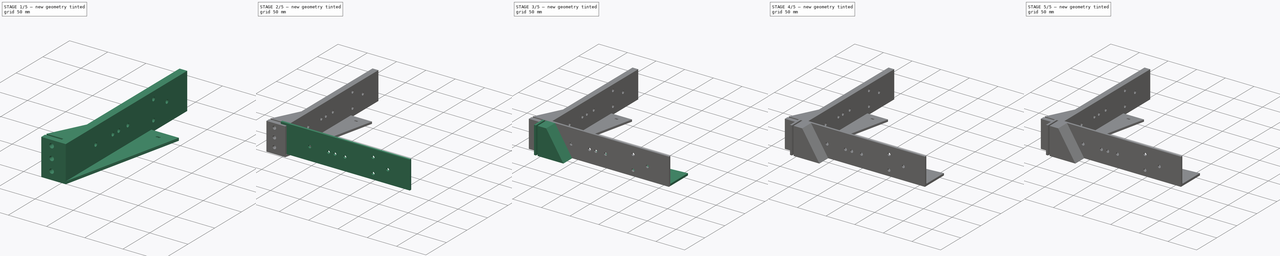
[diagram: build sequence overview — one tinted view per stage of 5, left to right]
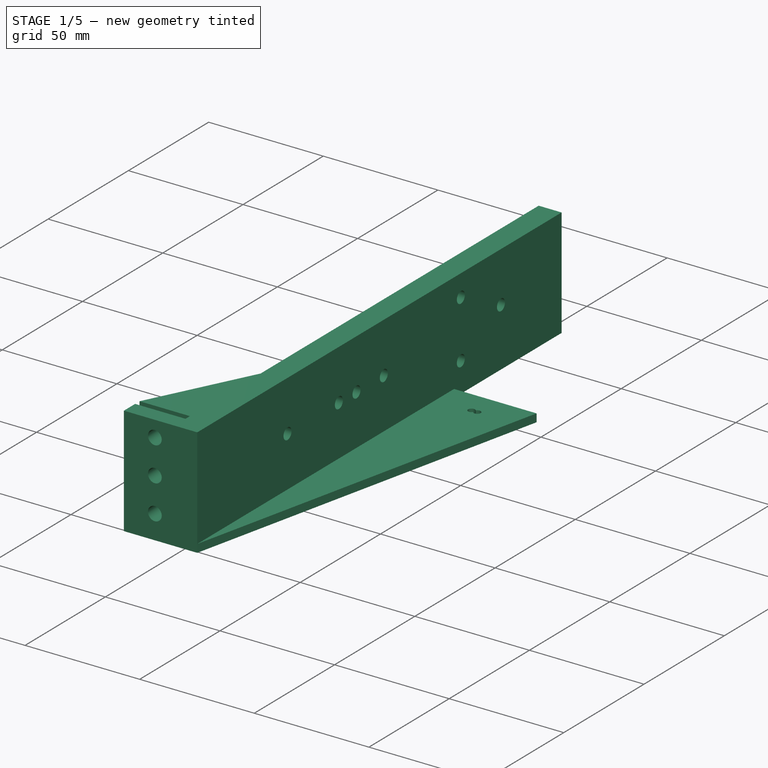
[diagram: stage 1 of 5 — iso view after this stage's code; geometry added in this stage tinted green]
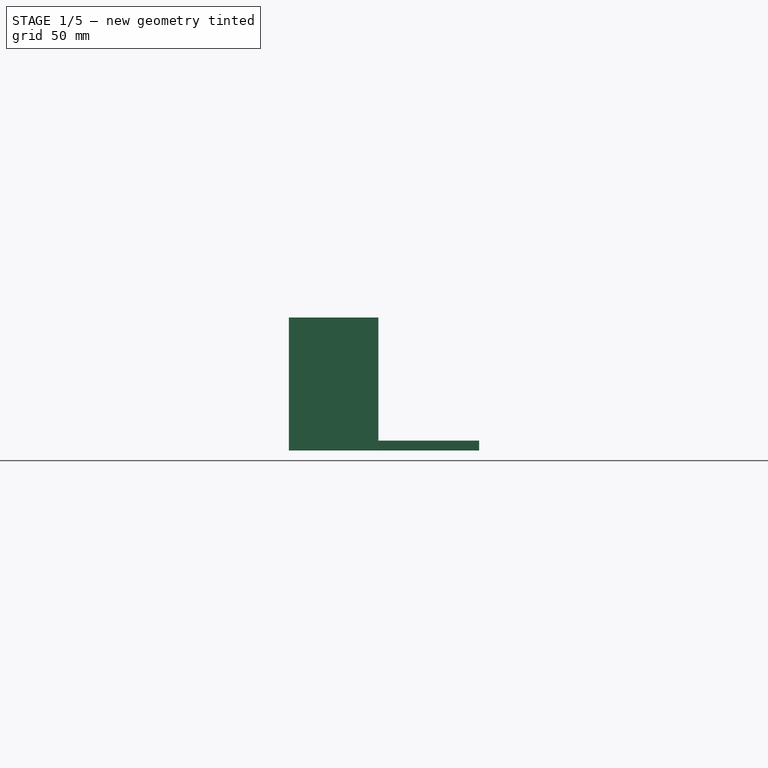
[diagram: stage 1 of 5 — front view after this stage's code; geometry added in this stage tinted green]
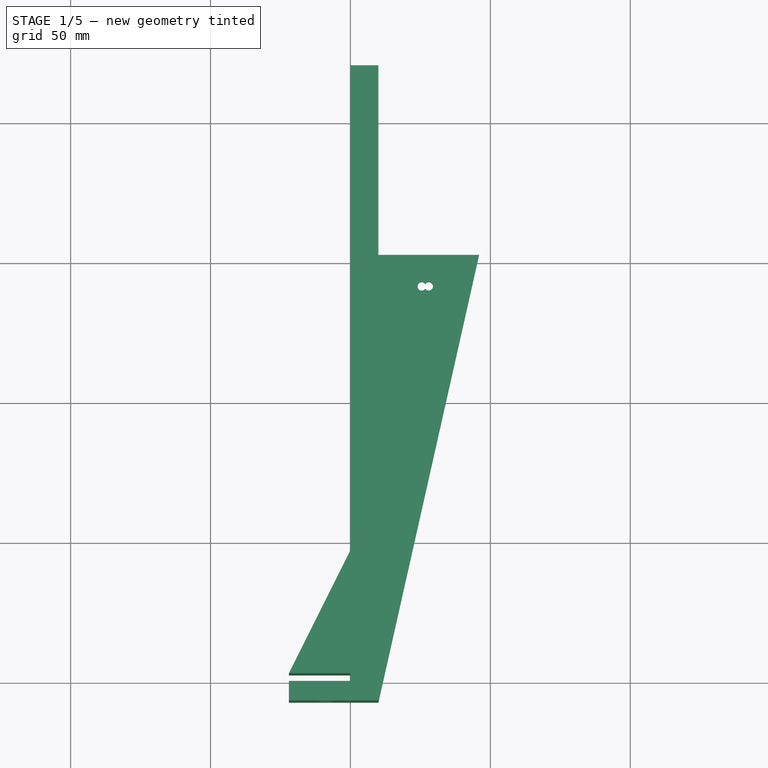
[diagram: stage 1 of 5 — top view after this stage's code; geometry added in this stage tinted green]
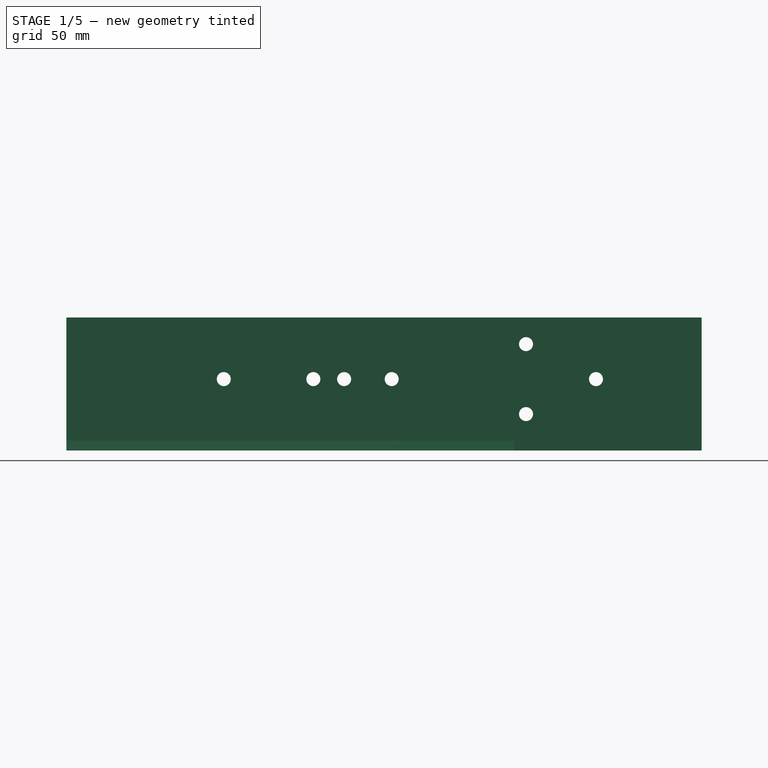
[diagram: stage 1 of 5 — right view after this stage's code; geometry added in this stage tinted green]
FCSTD DOCUMENT  (FreeCAD 2023.131R26244 +5365 (Git))
Label: Brocade ICX6610-48-I Rack Ears
License: All rights reserved
LicenseURL: http://en.wikipedia.org/wiki/All_rights_reserved
objects: Sketcher::SketchObject×17, PartDesign::Pad×10, PartDesign::Pocket×4, PartDesign::Body×3, PartDesign::Hole×3, PartDesign::Chamfer×2, Spreadsheet::Sheet×1, PartDesign::Fillet×1
note: 97 computed .brp shape members not serialized (recipe doc carries the construction recipe); baked Part::Feature solids carry a one-line shape summary decoded from their .brp

FEATURE [PartDesign::Body] Body001  label="Version 2"
  AutoGroupSolids = false
  ClaimAllChildren = false
  ExportMode = 0
  Group = -> [Sketch004,Pad002,Sketch005,Sketch007,Sketch008,Pad003,Pad004,Pad005,Sketch009,Sketch010,Hole,Hole001,Fillet,Chamfer001]
  InvalidShape = false
  Origin = -> Origin001
  Tip = -> Chamfer001
  TreeRank = 31
  ValidateShape = true
  _ExportChildren = -> [Pad002,Pad003,Pad004,Pad005,Hole,Hole001,Fillet,Chamfer001]
  _GroupVersion = 1
FEATURE [Sketcher::SketchObject] Sketch011
  ArcFitTolerance = 1e-06
  AttachmentSupport = -> [YZ_Plane002]
  ExternalBSplineMaxDegree = 5
  ExternalBSplineTolerance = 0.0001
  FullyConstrained = true
  InternalTolerance = 1e-06
  InvalidShape = false
  MakeInternals = false
  MapMode = 5
  Placement = pos=(0,0,0) rot=(0.57735,0.57735,0.57735;2.0944rad)
  Support = -> [YZ_Plane002]
  TreeRank = 66
  ValidateShape = true
  expr: Constraints[10] = <<Parameters>>.Length
  expr: Constraints[11] = <<Parameters>>.Min_Thickness
  expr: Constraints[12] = Spreadsheet.Side_Hole_Diameter
  expr: Constraints[19] = <<Parameters>>.Hole01_X
  expr: Constraints[20] = <<Parameters>>.Hole02_X
  expr: Constraints[21] = <<Parameters>>.Hole03_X
  expr: Constraints[22] = <<Parameters>>.Hole04_X
  expr: Constraints[23] = <<Parameters>>.Hole05_X
  expr: Constraints[24] = <<Parameters>>.Hole06_X
  expr: Constraints[25] = <<Parameters>>.Hole07_X
  expr: Constraints[26] = <<Parameters>>.Hole01_Y
  expr: Constraints[27] = <<Parameters>>.Hole02_Y
  expr: Constraints[28] = <<Parameters>>.Hole03_Y
  expr: Constraints[29] = <<Parameters>>.Hole04_Y
  expr: Constraints[30] = <<Parameters>>.Hole05_Y
  expr: Constraints[31] = <<Parameters>>.Hole06_Y
  expr: Constraints[32] = <<Parameters>>.Hole07_Y
  expr: Constraints[9] = <<Parameters>>.Height
  sketch-geometry (11):
    g0: LineSegment StartX=220 StartY=-3.5 StartZ=0 EndX=0 EndY=-3.5 EndZ=0
    g1: LineSegment StartX=0 StartY=-3.5 StartZ=0 EndX=0 EndY=44 EndZ=0
    g2: LineSegment StartX=0 StartY=44 StartZ=0 EndX=220 EndY=44 EndZ=0
    g3: LineSegment StartX=220 StartY=44 StartZ=0 EndX=220 EndY=-3.5 EndZ=0
    g4: Circle CenterX=49.25 CenterY=22 CenterZ=0 NormalX=0 NormalY=0 NormalZ=1 AngleXU=0 Radius=2.5
    g5: Circle CenterX=81.25 CenterY=22 CenterZ=0 NormalX=0 NormalY=0 NormalZ=1 AngleXU=0 Radius=2.5
    g6: Circle CenterX=92.25 CenterY=22 CenterZ=0 NormalX=0 NormalY=0 NormalZ=1 AngleXU=0 Radius=2.5
    g7: Circle CenterX=109.25 CenterY=22 CenterZ=0 NormalX=0 NormalY=0 NormalZ=1 AngleXU=0 Radius=2.5
    g8: Circle CenterX=157.25 CenterY=34.5 CenterZ=0 NormalX=0 NormalY=0 NormalZ=1 AngleXU=0 Radius=2.5
    g9: Circle CenterX=157.25 CenterY=9.5 CenterZ=0 NormalX=0 NormalY=0 NormalZ=1 AngleXU=0 Radius=2.5
    g10: Circle CenterX=182.25 CenterY=22 CenterZ=0 NormalX=0 NormalY=0 NormalZ=1 AngleXU=0 Radius=2.5
  constraints (28):
    c: Coincident(g0,g1)
    c: Coincident(g1,g2)
    c: Coincident(g2,g3)
    c: Coincident(g3,g0)
    c: Horizontal(g0)
    c: Horizontal(g2)
    c: Vertical(g1)
    c: Vertical(g3)
    c: PointOnObject(g1,g-2)
    c: DistanceY(g0,g1) = 47.5
    c: DistanceX(g0,g0) = 220
    c: DistanceY(g0,g-1) = 3.5
    c: Diameter(g4) = 5
    c: Equal(g4, g5-g10) x6
    c: DistanceX(g0,g4) = 49.25
    c: DistanceX(g0,g5) = 81.25
    c: DistanceX(g0,g6) = 92.25
    c: DistanceX(g0,g7) = 109.25
    c: DistanceX(g0,g8) = 157.25
    c: DistanceX(g0,g9) = 157.25
    c: DistanceX(g1,g10) = 182.25
    c: DistanceY(g-1,g4) = 22
    c: DistanceY(g-1,g5) = 22
    c: DistanceY(g-1,g6) = 22
    c: DistanceY(g-1,g7) = 22
    c: DistanceY(g-1,g8) = 34.5
    c: DistanceY(g-1,g9) = 9.5
    c: DistanceY(g-1,g10) = 22
FEATURE [PartDesign::Pad] Pad006  label="Long Part 3"
  AddSubType = 0
  AlongSketchNormal = false
  AutoTaperInnerAngle = true
  CheckUpToFaceLimits = true
  ClaimChildren = false
  Direction = (1,-2e-16,3e-16)
  Fit = 0
  FitJoin = 0
  InnerFit = 0
  InnerFitJoin = 0
  InvalidShape = false
  Length = 10
  Length2 = 100
  Linearize = true
  NewSolid = false
  Profile = -> Sketch011
  Suppress = false
  TaperInnerAngle = 0
  TaperInnerAngleRev = 0
  TreeRank = 67
  Type = 0
  ValidateShape = true
  _ProfileBasedVersion = 1
  expr: Length = <<Parameters>>.Long_Width
FEATURE [Sketcher::SketchObject] Sketch012
  ArcFitTolerance = 1e-06
  AttachmentSupport = -> [Pad006]
  ExternalBSplineMaxDegree = 5
  ExternalBSplineTolerance = 0.0001
  FullyConstrained = true
  InternalTolerance = 1e-06
  InvalidShape = false
  MakeInternals = false
  MapMode = 5
  Placement = pos=(0,0,0) rot=(1,0,0;1.5708rad)
  Support = -> [Pad006]
  TreeRank = 68
  ValidateShape = true
  expr: Constraints[10] = Spreadsheet.Bracket_Width + <<Parameters>>.Long_Width
  expr: Constraints[11] = <<Parameters>>.Long_Width
  expr: Constraints[12] = <<Parameters>>.Mounting_Hole_Diameter
  expr: Constraints[15] = <<Parameters>>.Mounting_Hole_Horizontal_Distance
  expr: Constraints[16] = <<Parameters>>.Mounting_Hole_Horizontal_Distance
  expr: Constraints[17] = <<Parameters>>.Mounting_Hole_Horizontal_Distance
  expr: Constraints[18] = <<Parameters>>.Device_Height / 2
  expr: Constraints[19] = <<Parameters>>.Mounting_Hole_Vertical_Distance
  expr: Constraints[20] = <<Parameters>>.Mounting_Hole_Vertical_Distance
  expr: Constraints[8] = <<Parameters>>.Height
  expr: Constraints[9] = <<Parameters>>.Min_Thickness
  sketch-geometry (7):
    g0: LineSegment StartX=10 StartY=-3.5 StartZ=0 EndX=-22 EndY=-3.5 EndZ=0
    g1: LineSegment StartX=-22 StartY=-3.5 StartZ=0 EndX=-22 EndY=44 EndZ=0
    g2: LineSegment StartX=-22 StartY=44 StartZ=0 EndX=10 EndY=44 EndZ=0
    g3: LineSegment StartX=10 StartY=44 StartZ=0 EndX=10 EndY=-3.5 EndZ=0
    g4: Circle CenterX=-8.5 CenterY=37 CenterZ=0 NormalX=0 NormalY=0 NormalZ=1 AngleXU=0 Radius=3
    g5: Circle CenterX=-8.5 CenterY=22 CenterZ=0 NormalX=0 NormalY=0 NormalZ=1 AngleXU=0 Radius=3
    g6: Circle CenterX=-8.5 CenterY=7 CenterZ=0 NormalX=0 NormalY=0 NormalZ=1 AngleXU=0 Radius=3
  constraints (21):
    c: Coincident(g0,g1)
    c: Coincident(g1,g2)
    c: Coincident(g2,g3)
    c: Coincident(g3,g0)
    c: Horizontal(g0)
    c: Horizontal(g2)
    c: Vertical(g1)
    c: Vertical(g3)
    c: DistanceY(g0,g2) = 47.5
    c: DistanceY(g0,g-1) = 3.5
    c: DistanceX(g1,g2) = 32
    c: DistanceX(g-1,g0) = 10
    c: Diameter(g4) = 6
    c: Equal(g4,g5)
    c: Equal(g4,g6)
    c: DistanceX(g6,g-1) = 8.5
    c: DistanceX(g5,g-1) = 8.5
    c: DistanceX(g4,g-1) = 8.5
    c: DistanceY(g-1,g5) = 22
    c: DistanceY(g5,g4) = 15
    c: DistanceY(g6,g5) = 15
FEATURE [PartDesign::Pad] Pad007  label="Mounting Bracket 3"
  AddSubType = 0
  AlongSketchNormal = false
  AutoTaperInnerAngle = true
  BaseFeature = -> Pad006
  CheckUpToFaceLimits = true
  ClaimChildren = false
  Direction = (-2e-16,-1,2e-16)
  Fit = 0
  FitJoin = 0
  InnerFit = 0
  InnerFitJoin = 0
  InvalidShape = false
  Length = 7
  Length2 = 100
  Linearize = true
  NewSolid = false
  Profile = -> Sketch012
  Suppress = false
  TaperInnerAngle = 0
  TaperInnerAngleRev = 0
  TreeRank = 69
  Type = 0
  ValidateShape = true
  _ProfileBasedVersion = 1
  expr: Length = <<Parameters>>.Bracket_Thickness
FEATURE [Sketcher::SketchObject] Sketch013
  ArcFitTolerance = 1e-06
  AttachmentSupport = -> [XY_Plane002]
  ExternalBSplineMaxDegree = 5
  ExternalBSplineTolerance = 0.0001
  FullyConstrained = true
  InternalTolerance = 1e-06
  InvalidShape = false
  MakeInternals = false
  MapMode = 5
  Support = -> [XY_Plane002]
  TreeRank = 70
  ValidateShape = true
  expr: Constraints[11] = <<Parameters>>.Under01_Distance
  expr: Constraints[12] = <<Parameters>>.Under02_Distance
  expr: Constraints[13] = <<Parameters>>.Long_Width + <<Parameters>>.Under01_Offset
  expr: Constraints[14] = <<Parameters>>.Long_Width + <<Parameters>>.Under02_Offset
  expr: Constraints[5] = <<Parameters>>.Bracket_Thickness
  expr: Constraints[6] = <<Parameters>>.Wing_Length
  expr: Constraints[7] = <<Parameters>>.Wing_Width
  expr: Constraints[8] = <<Parameters>>.Long_Width
  expr: Constraints[9] = <<Parameters>>.Bottom_Hole_Diameter
  sketch-geometry (5):
    g0: LineSegment StartX=10 StartY=-7 StartZ=0 EndX=10 EndY=153 EndZ=0
    g1: LineSegment StartX=10 StartY=153 StartZ=0 EndX=46 EndY=153 EndZ=0
    g2: LineSegment StartX=46 StartY=153 StartZ=0 EndX=10 EndY=-7 EndZ=0
    g3: ArcOfCircle CenterX=25.5 CenterY=141.75 CenterZ=0 NormalX=0 NormalY=0 NormalZ=1 AngleXU=0 Radius=1.5 StartAngle=0.585686 EndAngle=5.6975
    g4: ArcOfCircle CenterX=28 CenterY=141.75 CenterZ=0 NormalX=0 NormalY=0 NormalZ=1 AngleXU=0 Radius=1.5 StartAngle=3.72728 EndAngle=8.83909
  constraints (17):
    c: Vertical(g0)
    c: Coincident(g1,g0)
    c: Horizontal(g1)
    c: Coincident(g2,g1)
    c: Coincident(g2,g0)
    c: DistanceY(g0,g-1) = 7
    c: DistanceY(g0,g0) = 160
    c: DistanceX(g0,g1) = 36
    c: DistanceX(g-1,g0) = 10
    c: Diameter(g4) = 3
    c: Equal(g4,g3)
    c: DistanceY(g-1,g3) = 141.75
    c: DistanceY(g-1,g4) = 141.75
    c: DistanceX(g-1,g3) = 25.5
    c: DistanceX(g-1,g4) = 28
    c: Coincident(g3,g4)
    c: Coincident(g3,g4)
FEATURE [Sketcher::SketchObject] Sketch014
  ArcFitTolerance = 1e-06
  AttachmentSupport = -> [XY_Plane002]
  ExternalBSplineMaxDegree = 5
  ExternalBSplineTolerance = 0.0001
  FullyConstrained = true
  InternalTolerance = 1e-06
  InvalidShape = false
  MakeInternals = false
  MapMode = 5
  Support = -> [XY_Plane002]
  TreeRank = 72
  ValidateShape = true
  expr: Constraints[5] = Spreadsheet.Bracket_Width
  expr: Constraints[6] = <<Parameters>>.Bracket_Length
  expr: Constraints[7] = Spreadsheet.Rack_Frame_Thickness
  sketch-geometry (3):
    g0: LineSegment StartX=0 StartY=2.75 StartZ=0 EndX=-22 EndY=2.75 EndZ=0
    g1: LineSegment StartX=0 StartY=2.75 StartZ=0 EndX=0 EndY=46.75 EndZ=0
    g2: LineSegment StartX=0 StartY=46.75 StartZ=0 EndX=-22 EndY=2.75 EndZ=0
  constraints (9):
    c: Horizontal(g0)
    c: Coincident(g1,g0)
    c: Vertical(g1)
    c: Coincident(g2,g1)
    c: Coincident(g2,g0)
    c: DistanceX(g0,g0) = 22
    c: DistanceY(g0,g1) = 44
    c: DistanceY(g-1,g0) = 2.75
    c: DistanceX(g0,g-1) = 0
FEATURE [PartDesign::Pad] Pad009  label="Mounting Support 3"
  AddSubType = 0
  AlongSketchNormal = false
  AutoTaperInnerAngle = true
  BaseFeature = -> Pad007
  CheckUpToFaceLimits = true
  ClaimChildren = false
  Direction = (0,0,1)
  Fit = 0
  FitJoin = 0
  InnerFit = 0
  InnerFitJoin = 0
  InvalidShape = false
  Length = 44
  Length2 = 3.5
  Linearize = true
  NewSolid = false
  Profile = -> Sketch014
  Suppress = false
  TaperInnerAngle = 0
  TaperInnerAngleRev = 0
  TreeRank = 73
  Type = 4
  ValidateShape = true
  _ProfileBasedVersion = 1
  expr: Length = <<Parameters>>.Device_Height
  expr: Length2 = <<Parameters>>.Min_Thickness
FEATURE [PartDesign::Pad] Pad008  label="Wing 3"
  AddSubType = 0
  AlongSketchNormal = false
  AutoTaperInnerAngle = true
  BaseFeature = -> Pad009
  CheckUpToFaceLimits = true
  ClaimChildren = false
  Direction = (0,0,1)
  Fit = 0
  FitJoin = 0
  InnerFit = 0
  InnerFitJoin = 0
  InvalidShape = false
  Length = 3.5
  Length2 = 100
  Linearize = true
  NewSolid = false
  Profile = -> Sketch013
  Reversed = true
  Suppress = false
  TaperInnerAngle = 0
  TaperInnerAngleRev = 0
  TreeRank = 71
  Type = 0
  ValidateShape = true
  _ProfileBasedVersion = 1
  expr: Length = <<Parameters>>.Min_Thickness
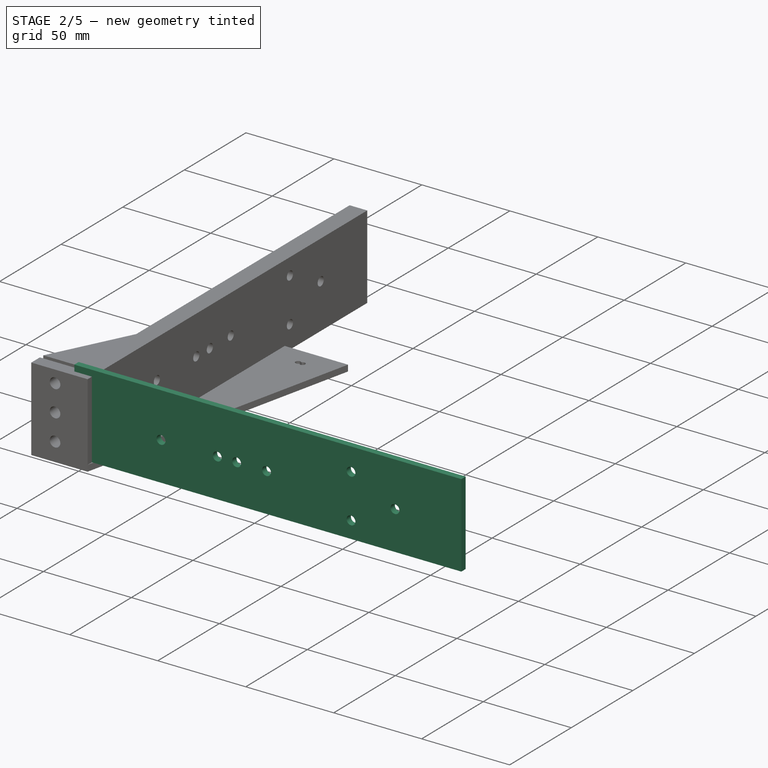
[diagram: stage 2 of 5 — iso view after this stage's code; geometry added in this stage tinted green]
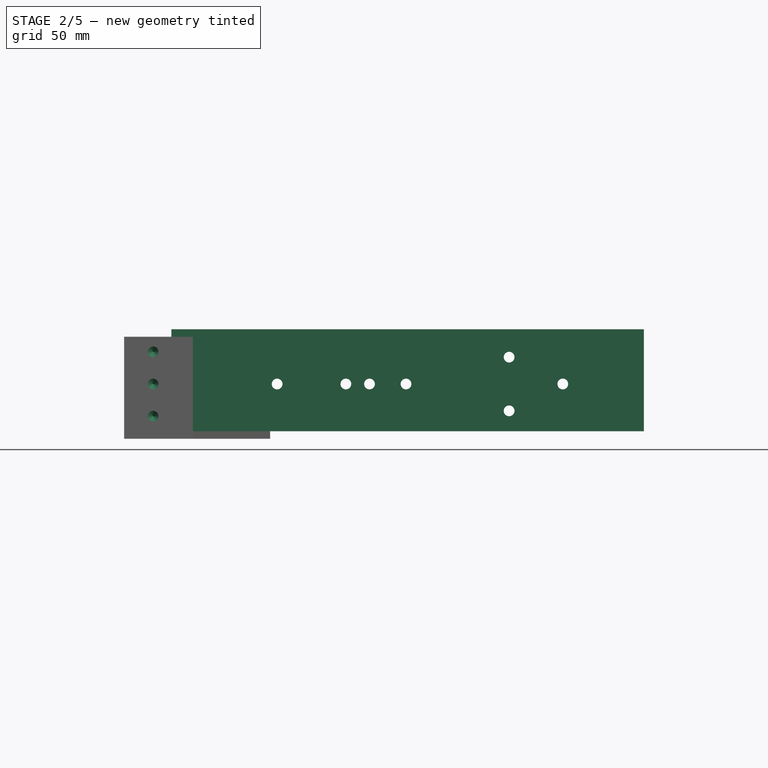
[diagram: stage 2 of 5 — front view after this stage's code; geometry added in this stage tinted green]
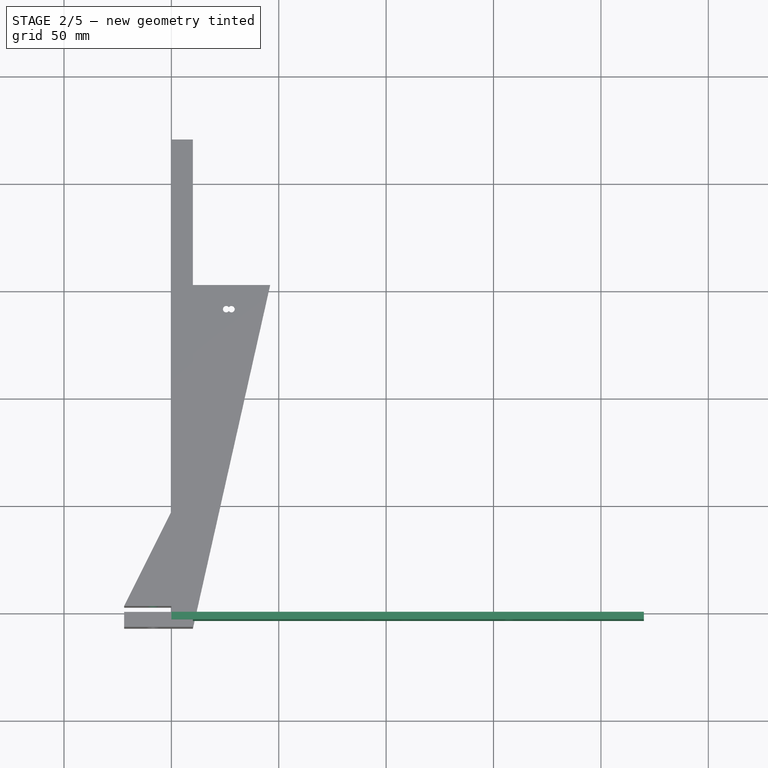
[diagram: stage 2 of 5 — top view after this stage's code; geometry added in this stage tinted green]
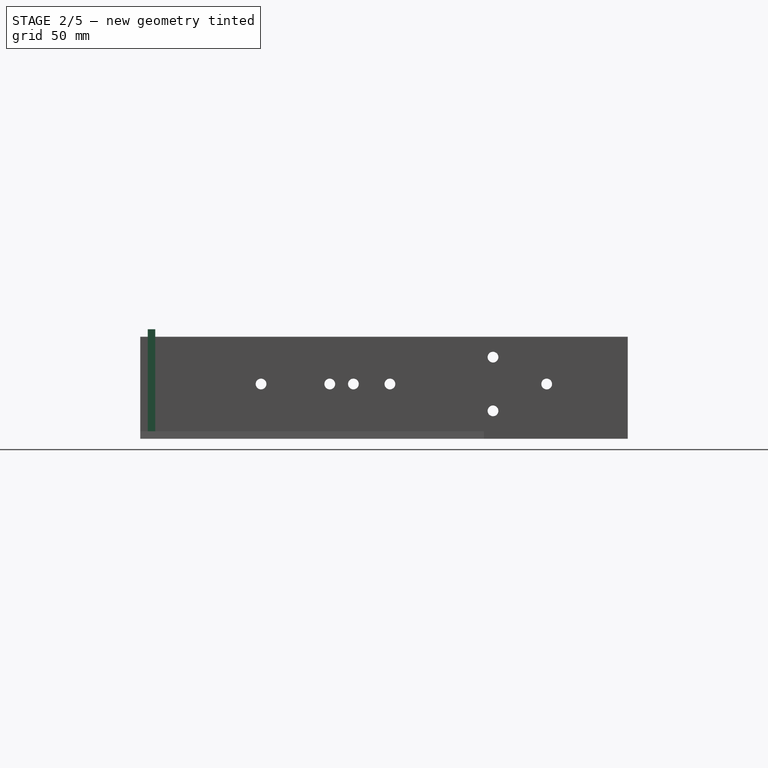
[diagram: stage 2 of 5 — right view after this stage's code; geometry added in this stage tinted green]
FEATURE [PartDesign::Body] Body  label="Version 1"
  AutoGroupSolids = false
  ClaimAllChildren = false
  ExportMode = 0
  Group = -> [Sketch,Pad,Sketch001,Pocket,Chamfer,Sketch002,Pad001,Sketch003,Pocket001]
  InvalidShape = false
  Origin = -> Origin
  Tip = -> Pocket001
  TreeRank = 11
  ValidateShape = true
  _ExportChildren = -> [Pad,Pocket,Chamfer,Pad001,Pocket001]
  _GroupVersion = 1
FEATURE [Spreadsheet::Sheet] Spreadsheet  label="Parameters"
  PythonMode = false
  ShowCells = 0
  TreeRank = 10
  cells = A1=Things to Measure; A2=Rack Distance Between Posts; B2(Rack_Post_Distance)=450; C2=Measure the space between the inside edges of the rack; A3=Rack Frame Thickness; B3(Rack_Frame_Thickness)=2.75; C3=Measure the thickness of the rack metal that monting screws are inserted into; A4=Device Height; B4(Device_Height)=44; C4=Not critical - Measure the height of the device you want to mount in the rack; A5=Device Width; B5(Device_Width)=430; C5=Measure the width of the device that you want to mount in the rack.; A6=Side Screw Hole Diameter; B6(Side_Hole_Diameter)=5; C6=The outer diameter of the screws (including the threads) you will use to mount the rack ears to the side of your device.; A7=Side Screw Head/Washer Diameter; B7(Side_Head_Diameter)=9; C7=The diameter of the head of the screw or washer you will use to mount the rack ears to the side of your device.; A8=Under Screw Hole Diameter; B8(Bottom_Hole_Diameter)=3; C8=The outer diameter of the screws (including the threads) you will use to mount the rack ears to the bottom of your device.; A9=Under Screw Head/Washer Diameter; B9(Bottom_Head_Diameter)=7; C9=The diameter of the head of the screw or washer you will use to mount the rack ears to the bottom of your device.; A10=Mounting Bracket Width; B10(Bracket_Width)=22; C10=The width of the mounting bracket. This can be smaller than the maximum, but should allow for mounting screws.; A11=Mounting Hole Diameter; B11(Mounting_Hole_Diameter)=6; C11=The outer diameter of the screws (including the threads) that are used to mount the device to the rack posts. Usually M6.; A12=Mounting Hole Horizontal Distance; B12(Mounting_Hole_Horizontal_Distance)=8.5; C12=The distance from the inside edge of the rack post to the center of the rack mounting hole.; A13=Mounting Hole Vertical Distance; B13(Mounting_Hole_Vertical_Distance)=15; C13=The vertical distance between the rack ear mounting holes; A15=Things to Decide; A16=Min Part Thickness; B16(Min_Thickness)=3.5; C16=May not always be used, but should not be less than 2mm.; A17=Part Length; B17(Min_Length)=220; C17=The overall length of the part. Should be long enough to all for all side mounting holes.; A18=Wing Width; B18(Wing_Width)=36; A19=Wing Length; B19(Wing_Length)=160; A20=Side Screw Length in Part; B20(Side_Length_In_Part)=5; C20=How much of the screw that mounts the ears to the side of the device remains in the ears. This does not include the screw head.; A21=Bottom Screw Length in Part; B21(Bottom_Length_In_Part)=2; C21=How much of the screw that mounts the ears to the bottom of the device remains in the ears. This does not include the screw head.; A22=Mounting Bracket Thickness; B22(Bracket_Thickness)=7; C22=The thickness of the mounting bracket. This is the part that is in front of the rack posts.; A23=Mounting Support Length; B23(Bracket_Length)=44; C23=The length of the triangular piece behind the rack posts.; A25=Things that are Calculated; A26=Part Height; B26(Height)==Device_Height + Min_Thickness; A27=Part Length; B27(Length)==max(Hole07_Distance + Min_Thickness, Min_Length); A28=Long Piece Thickness; B28(Long_Width)==(Rack_Post_Distance - Device_Width) / 2; A29=Device Screw Recess Depth; B29(Screw_Recess_Depth)==Long_Width - Side_Length_In_Part; A31=Side Mounting Holes; B31=Distance; C31=Vert Offset; E31=H from Origin; F31=V from Origin; A32=Device Hole 01; B32(Hole01_Distance)==59 - Bracket_Thickness - Rack_Frame_Thickness; C32(Hole01_Offset)=0; E32(Hole01_X)==Hole01_Distance; F32(Hole01_Y)==Device_Height / 2 + Hole01_Offset; A33=Device Hole 02; B33(Hole02_Distance)==Hole01_Distance + 32; C33(Hole02_Offset)=0; E33(Hole02_X)==Hole02_Distance; F33(Hole02_Y)==Device_Height / 2 + Hole02_Offset; A34=Device Hole 03; B34(Hole03_Distance)==Hole02_Distance + 11; C34(Hole03_Offset)=0; E34(Hole03_X)==Hole03_Distance; F34(Hole03_Y)==Device_Height / 2 + Hole03_Offset; A35=Device Hole 04; B35(Hole04_Distance)==Hole03_Distance + 17; C35(Hole04_Offset)=0; E35(Hole04_X)==Hole04_Distance; F35(Hole04_Y)==Device_Height / 2 + Hole04_Offset; A36=Device Hole 05; B36(Hole05_Distance)==Hole04_Distance + 48; C36(Hole05_Offset)==25 / 2; E36(Hole05_X)==Hole05_Distance; F36(Hole05_Y)==Device_Height / 2 + Hole05_Offset; A37=Device Hole 06; B37(Hole06_Distance)==Hole04_Distance + 48; C37(Hole06_Offset)==-25 / 2; E37(Hole06_X)==Hole06_Distance; F37(Hole06_Y)==Device_Height / 2 + Hole06_Offset; A38=Device Hole 07; B38(Hole07_Distance)==Hole04_Distance + 73; C38(Hole07_Offset)=0; E38(Hole07_X)==Hole07_Distance; F38(Hole07_Y)==Device_Height / 2 + Hole07_Offset; A40=Bottom Mounting Holes; B40=Distance; C40=Vert Offset; A41=Under Hole 01; B41(Under01_Distance)==Hole01_Distance + 92.5; C41(Under01_Offset)=15.5; A42=Under Hole 02; B42(Under02_Distance)==Under01_Distance; C42(Under02_Offset)=18
FEATURE [Sketcher::SketchObject] Sketch004
  ArcFitTolerance = 1e-06
  AttachmentSupport = -> [XZ_Plane001]
  ExternalBSplineMaxDegree = 5
  ExternalBSplineTolerance = 0.0001
  FullyConstrained = true
  InternalTolerance = 1e-06
  InvalidShape = false
  MakeInternals = false
  MapMode = 5
  Placement = pos=(0,0,0) rot=(1,0,0;1.5708rad)
  Support = -> [XZ_Plane001]
  TreeRank = 32
  ValidateShape = true
  expr: Constraints[10] = Spreadsheet.Min_Length
  expr: Constraints[11] = Spreadsheet.Side_Hole_Diameter
  expr: Constraints[18] = <<Parameters>>.Hole01_X
  expr: Constraints[19] = <<Parameters>>.Hole02_X
  expr: Constraints[20] = <<Parameters>>.Hole03_X
  expr: Constraints[21] = <<Parameters>>.Hole04_X
  expr: Constraints[22] = <<Parameters>>.Hole05_X
  expr: Constraints[23] = <<Parameters>>.Hole06_X
  expr: Constraints[24] = <<Parameters>>.Hole07_X
  expr: Constraints[25] = <<Parameters>>.Hole01_Y
  expr: Constraints[26] = <<Parameters>>.Hole02_Y
  expr: Constraints[27] = <<Parameters>>.Hole03_Y
  expr: Constraints[28] = <<Parameters>>.Hole04_Y
  expr: Constraints[29] = <<Parameters>>.Hole05_Y
  expr: Constraints[30] = <<Parameters>>.Hole06_Y
  expr: Constraints[31] = <<Parameters>>.Hole07_Y
  expr: Constraints[9] = <<Parameters>>.Height
  sketch-geometry (11):
    g0: LineSegment StartX=0 StartY=0 StartZ=0 EndX=220 EndY=0 EndZ=0
    g1: LineSegment StartX=220 StartY=0 StartZ=0 EndX=220 EndY=47.5 EndZ=0
    g2: LineSegment StartX=220 StartY=47.5 StartZ=0 EndX=0 EndY=47.5 EndZ=0
    g3: LineSegment StartX=0 StartY=47.5 StartZ=0 EndX=0 EndY=0 EndZ=0
    g4: Circle CenterX=49.25 CenterY=22 CenterZ=0 NormalX=0 NormalY=0 NormalZ=1 AngleXU=0 Radius=2.5
    g5: Circle CenterX=81.25 CenterY=22 CenterZ=0 NormalX=0 NormalY=0 NormalZ=1 AngleXU=0 Radius=2.5
    g6: Circle CenterX=92.25 CenterY=22 CenterZ=0 NormalX=0 NormalY=0 NormalZ=1 AngleXU=0 Radius=2.5
    g7: Circle CenterX=109.25 CenterY=22 CenterZ=0 NormalX=0 NormalY=0 NormalZ=1 AngleXU=0 Radius=2.5
    g8: Circle CenterX=157.25 CenterY=34.5 CenterZ=0 NormalX=0 NormalY=0 NormalZ=1 AngleXU=0 Radius=2.5
    g9: Circle CenterX=157.25 CenterY=9.5 CenterZ=0 NormalX=0 NormalY=0 NormalZ=1 AngleXU=0 Radius=2.5
    g10: Circle CenterX=182.25 CenterY=22 CenterZ=0 NormalX=0 NormalY=0 NormalZ=1 AngleXU=0 Radius=2.5
  constraints (27):
    c: Coincident(g0,g1)
    c: Coincident(g1,g2)
    c: Coincident(g2,g3)
    c: Coincident(g3,g0)
    c: Horizontal(g0)
    c: Horizontal(g2)
    c: Vertical(g1)
    c: Vertical(g3)
    c: Coincident(g0,g-1)
    c: DistanceY(g0,g2) = 47.5
    c: DistanceX(g0,g0) = 220
    c: Diameter(g4) = 5
    c: Equal(g4, g5-g10) x6
    c: DistanceX(g0,g4) = 49.25
    c: DistanceX(g0,g5) = 81.25
    c: DistanceX(g0,g6) = 92.25
    c: DistanceX(g0,g7) = 109.25
    c: DistanceX(g0,g8) = 157.25
    c: DistanceX(g0,g9) = 157.25
    c: DistanceX(g0,g10) = 182.25
    c: DistanceY(g0,g4) = 22
    c: DistanceY(g0,g5) = 22
    c: DistanceY(g0,g6) = 22
    c: DistanceY(g0,g7) = 22
    c: DistanceY(g0,g8) = 34.5
    c: DistanceY(g0,g9) = 9.5
    c: DistanceY(g0,g10) = 22
FEATURE [PartDesign::Pad] Pad002  label="Long Part 2"
  AddSubType = 0
  AlongSketchNormal = false
  AutoTaperInnerAngle = true
  CheckUpToFaceLimits = true
  ClaimChildren = false
  Direction = (0,-1,-2e-16)
  Fit = 0
  FitJoin = 0
  Group_EnableExport = false
  InnerFit = 0
  InnerFitJoin = 0
  InvalidShape = false
  Length = 3.5
  Length2 = 100
  Linearize = true
  NewSolid = false
  Profile = -> Sketch004
  Suppress = false
  TaperInnerAngle = 0
  TaperInnerAngleRev = 0
  TreeRank = 33
  Type = 0
  ValidateShape = true
  _ProfileBasedVersion = 1
  expr: Length = Spreadsheet.Min_Thickness
FEATURE [Sketcher::SketchObject] Sketch015
  ArcFitTolerance = 1e-06
  AttachmentSupport = -> [Pad008]
  ExternalBSplineMaxDegree = 5
  ExternalBSplineTolerance = 0.0001
  FullyConstrained = true
  InternalTolerance = 1e-06
  InvalidShape = false
  MakeInternals = false
  MapMode = 5
  Placement = pos=(0,2.75,0) rot=(1,0,0;1.5708rad)
  Support = -> [Pad008]
  TreeRank = 74
  ValidateShape = true
  expr: Constraints[0] = <<Parameters>>.Device_Height / 2
  expr: Constraints[1] = <<Parameters>>.Mounting_Hole_Vertical_Distance
  expr: Constraints[2] = <<Parameters>>.Mounting_Hole_Vertical_Distance
  expr: Constraints[3] = <<Parameters>>.Mounting_Hole_Horizontal_Distance
  expr: Constraints[4] = <<Parameters>>.Mounting_Hole_Horizontal_Distance
  expr: Constraints[5] = <<Parameters>>.Mounting_Hole_Horizontal_Distance
  sketch-geometry (3):
    g0: Circle CenterX=-8.5 CenterY=37 CenterZ=0 NormalX=0 NormalY=0 NormalZ=1 AngleXU=0 Radius=2.5
    g1: Circle CenterX=-8.5 CenterY=22 CenterZ=0 NormalX=0 NormalY=0 NormalZ=1 AngleXU=0 Radius=2.5
    g2: Circle CenterX=-8.5 CenterY=7 CenterZ=0 NormalX=0 NormalY=0 NormalZ=1 AngleXU=0 Radius=2.5
  constraints (9):
    c: DistanceY(g-1,g1) = 22
    c: DistanceY(g1,g0) = 15
    c: DistanceY(g2,g1) = 15
    c: DistanceX(g2,g-1) = 8.5
    c: DistanceX(g1,g-1) = 8.5
    c: DistanceX(g0,g-1) = 8.5
    c: Diameter(g0) = 5
    c: Equal(g0,g1)
    c: Equal(g0,g2)
FEATURE [PartDesign::Hole] Hole002  label="Mounting Holes 3"
  AddSubType = 1
  BaseFeature = -> Pad008
  ClaimChildren = false
  CustomThreadClearance = 0
  Depth = 15
  DepthType = 0
  Diameter = 5
  DrillForDepth = false
  DrillPoint = 1
  DrillPointAngle = 118
  Fit = 0
  FitJoin = 0
  HoleCutCountersinkAngle = 90
  HoleCutCustomValues = false
  HoleCutDepth = 0
  HoleCutDiameter = 6.1
  HoleCutType = 0
  InnerFit = 0
  InnerFitJoin = 0
  InvalidShape = false
  Linearize = true
  ModelThread = false
  NewSolid = false
  Profile = -> Sketch015
  Suppress = false
  Tapered = false
  TaperedAngle = 90
  ThreadClass = 0
  ThreadDepth = 15
  ThreadDepthType = 0
  ThreadDirection = 0
  ThreadFit = 0
  ThreadSize = 14
  ThreadType = 1
  Threaded = true
  TreeRank = 75
  UseCustomThreadClearance = false
  ValidateShape = true
  _ProfileBasedVersion = 1
FEATURE [Sketcher::SketchObject] Sketch016
  ArcFitTolerance = 1e-06
  AttachmentSupport = -> [Hole002]
  ExternalBSplineMaxDegree = 5
  ExternalBSplineTolerance = 0.0001
  FullyConstrained = true
  InternalTolerance = 1e-06
  InvalidShape = false
  MakeInternals = false
  MapMode = 5
  Placement = pos=(0,0,0) rot=(-0.57735,0.57735,0.57735;4.18879rad)
  Support = -> [Hole002]
  TreeRank = 76
  ValidateShape = true
  expr: Constraints[0] = Spreadsheet.Side_Head_Diameter
  expr: Constraints[10] = <<Parameters>>.Hole04_X
  expr: Constraints[11] = <<Parameters>>.Hole05_X
  expr: Constraints[12] = <<Parameters>>.Hole06_X
  expr: Constraints[13] = <<Parameters>>.Hole07_X
  expr: Constraints[14] = <<Parameters>>.Hole01_Y
  expr: Constraints[15] = <<Parameters>>.Hole02_Y
  expr: Constraints[16] = <<Parameters>>.Hole03_Y
  expr: Constraints[17] = <<Parameters>>.Hole04_Y
  expr: Constraints[18] = <<Parameters>>.Hole05_Y
  expr: Constraints[19] = <<Parameters>>.Hole06_Y
  expr: Constraints[20] = <<Parameters>>.Hole07_Y
  expr: Constraints[7] = <<Parameters>>.Hole01_X
  expr: Constraints[8] = <<Parameters>>.Hole02_X
  expr: Constraints[9] = <<Parameters>>.Hole03_X
  sketch-geometry (7):
    g0: Circle CenterX=-182.25 CenterY=22 CenterZ=0 NormalX=0 NormalY=0 NormalZ=1 AngleXU=0 Radius=4.5
    g1: Circle CenterX=-157.25 CenterY=34.5 CenterZ=0 NormalX=0 NormalY=0 NormalZ=1 AngleXU=0 Radius=4.5
    g2: Circle CenterX=-157.25 CenterY=9.5 CenterZ=0 NormalX=0 NormalY=0 NormalZ=1 AngleXU=0 Radius=4.5
    g3: Circle CenterX=-109.25 CenterY=22 CenterZ=0 NormalX=0 NormalY=0 NormalZ=1 AngleXU=0 Radius=4.5
    g4: Circle CenterX=-92.25 CenterY=22 CenterZ=0 NormalX=0 NormalY=0 NormalZ=1 AngleXU=0 Radius=4.5
    g5: Circle CenterX=-81.25 CenterY=22 CenterZ=0 NormalX=0 NormalY=0 NormalZ=1 AngleXU=0 Radius=4.5
    g6: Circle CenterX=-49.25 CenterY=22 CenterZ=0 NormalX=0 NormalY=0 NormalZ=1 AngleXU=0 Radius=4.5
  constraints (16):
    c: Diameter(g0) = 9
    c: Equal(g0, g1-g6) x6
    c: DistanceX(g6,g-1) = 49.25
    c: DistanceX(g5,g-1) = 81.25
    c: DistanceX(g4,g-1) = 92.25
    c: DistanceX(g3,g-1) = 109.25
    c: DistanceX(g1,g-1) = 157.25
    c: DistanceX(g2,g-1) = 157.25
    c: DistanceX(g0,g-1) = 182.25
    c: DistanceY(g-1,g6) = 22
    c: DistanceY(g-1,g5) = 22
    c: DistanceY(g-1,g4) = 22
    c: DistanceY(g-1,g3) = 22
    c: DistanceY(g-1,g1) = 34.5
    c: DistanceY(g-1,g2) = 9.5
    c: DistanceY(g-1,g0) = 22
FEATURE [PartDesign::Pocket] Pocket002  label="Mounting Hole Recesses 3"
  AddSubType = 1
  AutoTaperInnerAngle = true
  BaseFeature = -> Hole002
  CheckUpToFaceLimits = true
  ClaimChildren = false
  Fit = 0
  FitJoin = 0
  InnerFit = 0
  InnerFitJoin = 0
  InvalidShape = false
  Length = 5
  Length2 = 100
  Linearize = true
  NewSolid = false
  Profile = -> Sketch016
  Suppress = false
  TaperInnerAngle = 0
  TaperInnerAngleRev = 0
  TreeRank = 77
  Type = 4
  ValidateShape = true
  _ProfileBasedVersion = 1
  _Version = 1
  expr: Length = <<Parameters>>.Screw_Recess_Depth
FEATURE [Sketcher::SketchObject] Sketch017
  ArcFitTolerance = 1e-06
  AttachmentSupport = -> [Pocket002]
  ExternalBSplineMaxDegree = 5
  ExternalBSplineTolerance = 0.0001
  FullyConstrained = true
  InternalTolerance = 1e-06
  InvalidShape = false
  MakeInternals = false
  MapMode = 5
  Placement = pos=(0,0,-3.5) rot=(1,0,0;3.14159rad)
  Support = -> [Pocket002]
  TreeRank = 78
  ValidateShape = true
  expr: Constraints[0] = <<Parameters>>.Bottom_Head_Diameter
  expr: Constraints[2] = <<Parameters>>.Under01_Distance
  expr: Constraints[3] = <<Parameters>>.Under02_Distance
  expr: Constraints[4] = <<Parameters>>.Long_Width + <<Parameters>>.Under01_Offset
  expr: Constraints[5] = <<Parameters>>.Long_Width + <<Parameters>>.Under02_Offset
  sketch-geometry (2):
    g0: ArcOfCircle CenterX=25.5 CenterY=-141.75 CenterZ=0 NormalX=0 NormalY=0 NormalZ=1 AngleXU=0 Radius=3.5 StartAngle=1.20559 EndAngle=5.0776
    g1: ArcOfCircle CenterX=28 CenterY=-141.75 CenterZ=0 NormalX=0 NormalY=0 NormalZ=1 AngleXU=0 Radius=3.5 StartAngle=4.34718 EndAngle=8.21919
  constraints (8):
    c: Diameter(g1) = 7
    c: Equal(g1,g0)
    c: DistanceY(g0,g-1) = 141.75
    c: DistanceY(g1,g-1) = 141.75
    c: DistanceX(g-1,g0) = 25.5
    c: DistanceX(g-1,g1) = 28
    c: Coincident(g0,g1)
    c: Coincident(g0,g1)
FEATURE [PartDesign::Pocket] Pocket003  label="Bottom Hole Recess 3"
  AddSubType = 1
  AutoTaperInnerAngle = true
  BaseFeature = -> Pocket002
  CheckUpToFaceLimits = true
  ClaimChildren = false
  Fit = 0
  FitJoin = 0
  InnerFit = 0
  InnerFitJoin = 0
  InvalidShape = false
  Length = 1.5
  Length2 = 100
  Linearize = true
  NewSolid = false
  Profile = -> Sketch017
  Suppress = false
  TaperInnerAngle = 0
  TaperInnerAngleRev = 0
  TreeRank = 79
  Type = 4
  ValidateShape = true
  _ProfileBasedVersion = 1
  _Version = 1
  expr: Length = <<Parameters>>.Min_Thickness - <<Parameters>>.Bottom_Length_In_Part
FEATURE [PartDesign::Body] Body002  label="Version 3"
  AutoGroupSolids = false
  ClaimAllChildren = false
  ExportMode = 0
  Group = -> [Sketch011,Pad006,Sketch012,Pad007,Sketch013,Pad009,Pad008,Sketch014,Sketch015,Hole002,Sketch016,Pocket002,Sketch017,Pocket003]
  InvalidShape = false
  Origin = -> Origin002
  Tip = -> Pocket003
  TreeRank = 65
  ValidateShape = true
  _ExportChildren = -> [Pad006,Pad007,Pad009,Pad008,Hole002,Pocket002,Pocket003]
  _GroupVersion = 1
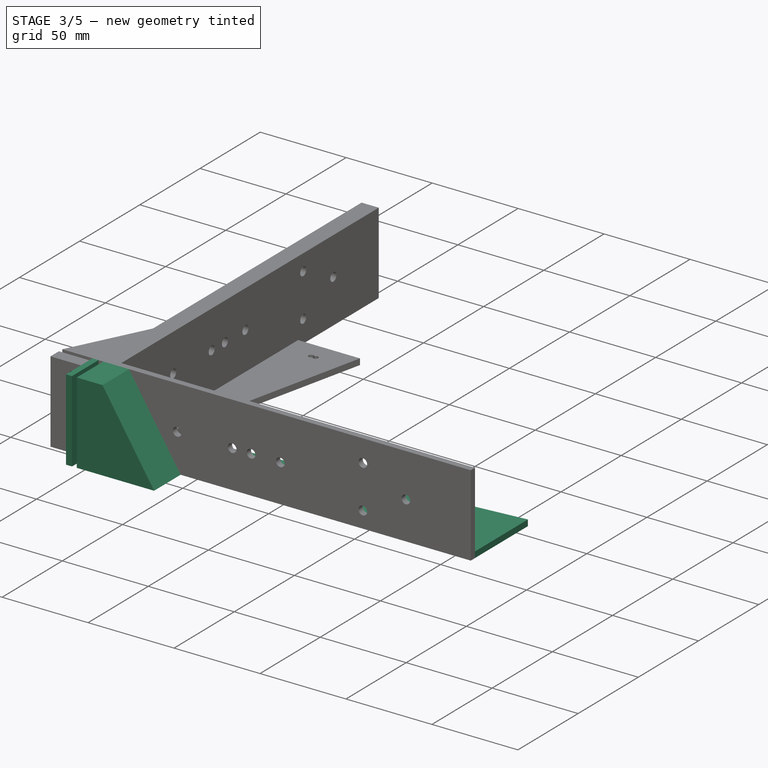
[diagram: stage 3 of 5 — iso view after this stage's code; geometry added in this stage tinted green]
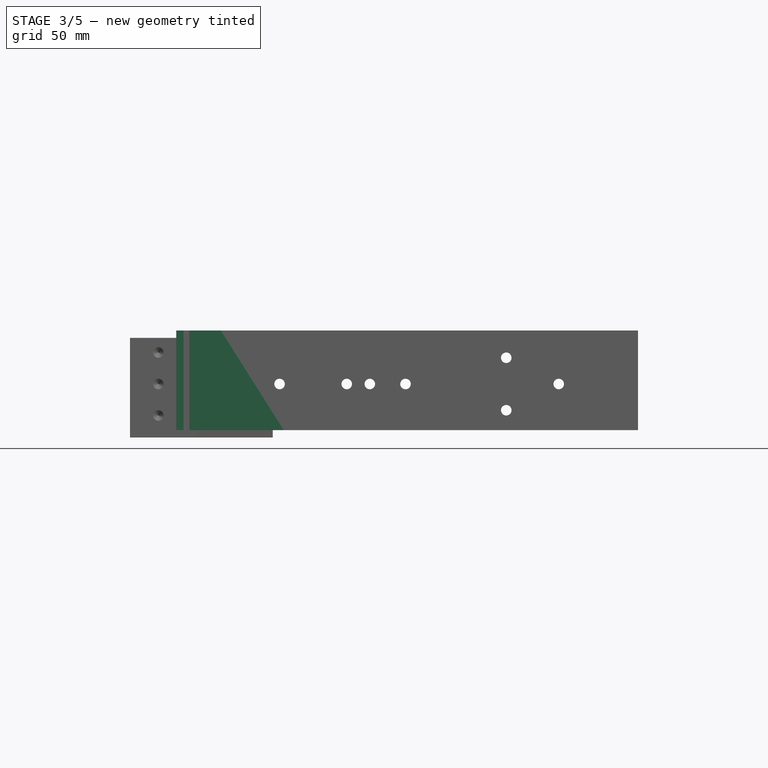
[diagram: stage 3 of 5 — front view after this stage's code; geometry added in this stage tinted green]
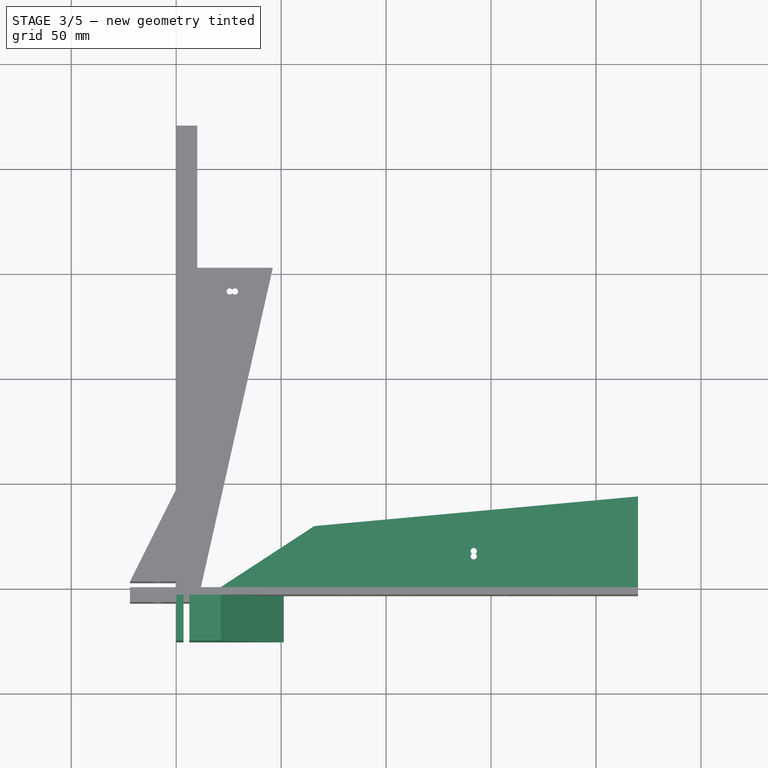
[diagram: stage 3 of 5 — top view after this stage's code; geometry added in this stage tinted green]
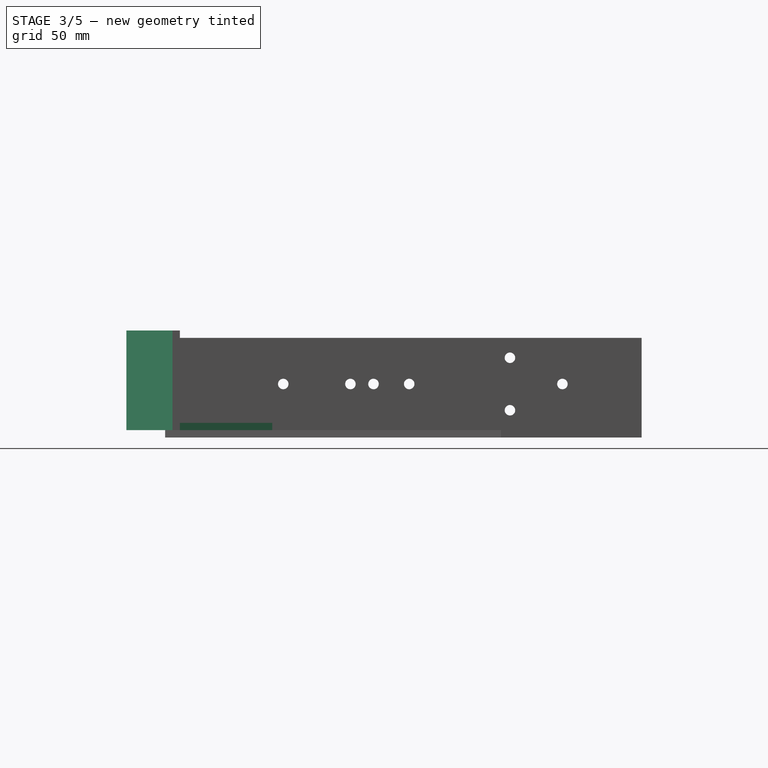
[diagram: stage 3 of 5 — right view after this stage's code; geometry added in this stage tinted green]
FEATURE [Sketcher::SketchObject] Sketch005
  ArcFitTolerance = 1e-06
  AttachmentSupport = -> [Pad002]
  ExternalBSplineMaxDegree = 5
  ExternalBSplineTolerance = 0.0001
  FullyConstrained = true
  InternalTolerance = 1e-06
  InvalidShape = false
  MakeInternals = false
  MapMode = 5
  Placement = pos=(0,-3.5,-8e-16) rot=(1,0,0;1.5708rad)
  Support = -> [Pad002]
  TreeRank = 34
  ValidateShape = true
  expr: Constraints[10] = <<Parameters>>.Height
  expr: Constraints[9] = Spreadsheet.Min_Thickness
  sketch-geometry (4):
    g0: LineSegment StartX=0 StartY=0 StartZ=0 EndX=3.5 EndY=0 EndZ=0
    g1: LineSegment StartX=3.5 StartY=0 StartZ=0 EndX=3.5 EndY=47.5 EndZ=0
    g2: LineSegment StartX=3.5 StartY=47.5 StartZ=0 EndX=0 EndY=47.5 EndZ=0
    g3: LineSegment StartX=0 StartY=47.5 StartZ=0 EndX=0 EndY=0 EndZ=0
  constraints (11):
    c: Coincident(g0,g1)
    c: Coincident(g1,g2)
    c: Coincident(g2,g3)
    c: Coincident(g3,g0)
    c: Horizontal(g0)
    c: Horizontal(g2)
    c: Vertical(g1)
    c: Vertical(g3)
    c: Coincident(g0,g-1)
    c: DistanceX(g0,g0) = 3.5
    c: DistanceY(g0,g1) = 47.5
FEATURE [PartDesign::Pad] Pad003  label="Short Part 2"
  AddSubType = 0
  AlongSketchNormal = false
  AutoTaperInnerAngle = true
  BaseFeature = -> Pad002
  CheckUpToFaceLimits = true
  ClaimChildren = false
  Direction = (0,-1,-2e-16)
  Fit = 0
  FitJoin = 0
  Group_EnableExport = false
  InnerFit = 0
  InnerFitJoin = 0
  InvalidShape = false
  Length = 22
  Length2 = 100
  Linearize = true
  NewSolid = false
  Profile = -> Sketch005
  Suppress = false
  TaperInnerAngle = 0
  TaperInnerAngleRev = 0
  TreeRank = 35
  Type = 0
  ValidateShape = true
  _ProfileBasedVersion = 1
  expr: Length = Spreadsheet.Bracket_Width
FEATURE [Sketcher::SketchObject] Sketch007
  ArcFitTolerance = 1e-06
  AttachmentSupport = -> [XY_Plane001]
  ExternalBSplineMaxDegree = 5
  ExternalBSplineTolerance = 0.0001
  FullyConstrained = false
  InternalTolerance = 1e-06
  InvalidShape = false
  MakeInternals = false
  MapMode = 5
  Support = -> [XY_Plane001]
  TreeRank = 38
  ValidateShape = true
  expr: Constraints[12] = <<Parameters>>.Under01_Offset
  expr: Constraints[13] = <<Parameters>>.Under02_Offset
  expr: Constraints[14] = <<Parameters>>.Under01_Distance
  expr: Constraints[15] = <<Parameters>>.Under02_Distance
  expr: Constraints[2] = Spreadsheet.Min_Length
  expr: Constraints[3] = Spreadsheet.Min_Length
  expr: Constraints[4] = <<Parameters>>.Device_Height
  sketch-geometry (9):
    g0: GeomPoint [constr] X=220 Y=44 Z=0
    g1: GeomPoint [constr] X=220 Y=0 Z=0
    g2: GeomPoint [constr] X=20 Y=0 Z=0
    g3: LineSegment StartX=20 StartY=0 StartZ=0 EndX=220 EndY=0 EndZ=0
    g4: LineSegment StartX=220 StartY=0 StartZ=0 EndX=220 EndY=44 EndZ=0
    g5: Circle CenterX=141.75 CenterY=15.5 CenterZ=0 NormalX=0 NormalY=0 NormalZ=1 AngleXU=0 Radius=1.5
    g6: Circle CenterX=141.75 CenterY=18 CenterZ=0 NormalX=0 NormalY=0 NormalZ=1 AngleXU=0 Radius=1.5
    g7: LineSegment StartX=20 StartY=0 StartZ=0 EndX=65.7848 EndY=29.8768 EndZ=0
    g8: LineSegment StartX=65.7848 StartY=29.8768 StartZ=0 EndX=220 EndY=44 EndZ=0
  constraints (19):
    c: PointOnObject(g2,g-1)
    c: PointOnObject(g1,g-1)
    c: DistanceX(g-1,g1) = 220
    c: DistanceX(g-1,g0) = 220
    c: DistanceY(g-1,g0) = 44
    c: DistanceX(g-1,g2) = 20
    c: Coincident(g3,g2)
    c: Coincident(g3,g1)
    c: Coincident(g4,g0)
    c: Vertical(g4)
    c: Equal(g5,g6)
    c: Diameter(g5) = 3
    c: DistanceY(g-1,g5) = 15.5
    c: DistanceY(g3,g6) = 18
    c: DistanceX(g-1,g5) = 141.75
    c: DistanceX(g-1,g6) = 141.75
    c: Coincident(g7,g3)
    c: Coincident(g8,g7)
    c: Coincident(g8,g4)
FEATURE [PartDesign::Pad] Pad004  label="Wing 2"
  AddSubType = 0
  AlongSketchNormal = false
  AutoTaperInnerAngle = true
  BaseFeature = -> Pad003
  CheckUpToFaceLimits = true
  ClaimChildren = false
  Direction = (0,0,1)
  Fit = 0
  FitJoin = 0
  Group_EnableExport = false
  InnerFit = 0
  InnerFitJoin = 0
  InvalidShape = true
  Length = 3.5
  Length2 = 100
  Linearize = true
  NewSolid = false
  Profile = -> Sketch007
  Suppress = false
  TaperInnerAngle = 0
  TaperInnerAngleRev = 0
  TreeRank = 39
  Type = 0
  ValidateShape = true
  _ProfileBasedVersion = 1
  expr: Length = Spreadsheet.Min_Thickness
FEATURE [Sketcher::SketchObject] Sketch008
  ArcFitTolerance = 1e-06
  ExternalBSplineMaxDegree = 5
  ExternalBSplineTolerance = 0.0001
  FullyConstrained = true
  InternalTolerance = 1e-06
  InvalidShape = false
  MakeInternals = false
  MapMode = 5
  Placement = pos=(0,-3.5,0) rot=(1,0,0;1.5708rad)
  TreeRank = 41
  ValidateShape = true
  expr: Placement.Base.y = -Spreadsheet.Min_Thickness
  expr: Constraints[1] = Spreadsheet.Min_Thickness + Spreadsheet.Rack_Frame_Thickness
  expr: Constraints[6] = <<Parameters>>.Height
  sketch-geometry (4):
    g0: LineSegment StartX=6.25 StartY=47.5 StartZ=0 EndX=21.25 EndY=47.5 EndZ=0
    g1: LineSegment StartX=6.25 StartY=0 StartZ=0 EndX=51.25 EndY=0 EndZ=0
    g2: LineSegment StartX=51.25 StartY=0 StartZ=0 EndX=21.25 EndY=47.5 EndZ=0
    g3: LineSegment StartX=6.25 StartY=47.5 StartZ=0 EndX=6.25 EndY=0 EndZ=0
  constraints (12):
    c: PointOnObject(g1,g-1)
    c: DistanceX(g-1,g1) = 6.25
    c: Horizontal(g0)
    c: PointOnObject(g1,g-1)
    c: Coincident(g2,g1)
    c: Coincident(g2,g0)
    c: DistanceY(g-1,g0) = 47.5
    c: DistanceX(g0,g0) = 15
    c: DistanceX(g1,g1) = 45
    c: Coincident(g3,g0)
    c: Coincident(g3,g1)
    c: Vertical(g3)
FEATURE [PartDesign::Pad] Pad005  label="Back Support"
  AddSubType = 0
  AlongSketchNormal = false
  AutoTaperInnerAngle = true
  BaseFeature = -> Pad004
  CheckUpToFaceLimits = true
  ClaimChildren = false
  Direction = (0,-1,0)
  Fit = 0
  FitJoin = 0
  Group_EnableExport = false
  InnerFit = 0
  InnerFitJoin = 0
  InvalidShape = true
  Length = 22
  Length2 = 100
  Linearize = true
  NewSolid = false
  Profile = -> Sketch008
  Suppress = false
  TaperInnerAngle = 0
  TaperInnerAngleRev = 0
  TreeRank = 42
  Type = 0
  ValidateShape = true
  _ProfileBasedVersion = 1
  expr: Length = Spreadsheet.Bracket_Width
FEATURE [Sketcher::SketchObject] Sketch009
  ArcFitTolerance = 1e-06
  ExternalBSplineMaxDegree = 5
  ExternalBSplineTolerance = 0.0001
  FullyConstrained = true
  InternalTolerance = 1e-06
  InvalidShape = false
  MakeInternals = false
  MapMode = 5
  Placement = pos=(8.5,0,0) rot=(0.57735,-0.57735,-0.57735;2.0944rad)
  TreeRank = 50
  ValidateShape = true
  expr: Constraints[2] = <<Parameters>>.Mounting_Hole_Diameter
  expr: Constraints[3] = Spreadsheet.Min_Thickness + 7.5
  expr: Constraints[4] = Spreadsheet.Min_Thickness + 7.5
  expr: Constraints[5] = Spreadsheet.Min_Thickness + 7.5
  expr: Constraints[6] = Spreadsheet.Min_Thickness + <<Parameters>>.Device_Height / 2
  expr: Constraints[7] = Spreadsheet.Mounting_Hole_Horizontal_Distance
  expr: Constraints[8] = Spreadsheet.Mounting_Hole_Horizontal_Distance
  sketch-geometry (3):
    g0: Circle CenterX=11 CenterY=34 CenterZ=0 NormalX=0 NormalY=0 NormalZ=1 AngleXU=0 Radius=3
    g1: Circle CenterX=11 CenterY=25.5 CenterZ=0 NormalX=0 NormalY=0 NormalZ=1 AngleXU=0 Radius=3
    g2: Circle CenterX=11 CenterY=17 CenterZ=0 NormalX=0 NormalY=0 NormalZ=1 AngleXU=0 Radius=3
  constraints (9):
    c: Equal(g0,g1)
    c: Equal(g0,g2)
    c: Diameter(g0) = 6
    c: DistanceX(g-1,g2) = 11
    c: DistanceX(g-1,g1) = 11
    c: DistanceX(g-1,g0) = 11
    c: DistanceY(g-1,g1) = 25.5
    c: DistanceY(g1,g0) = 8.5
    c: DistanceY(g2,g1) = 8.5
FEATURE [Sketcher::SketchObject] Sketch010
  ArcFitTolerance = 1e-06
  ExternalBSplineMaxDegree = 5
  ExternalBSplineTolerance = 0.0001
  FullyConstrained = true
  InternalTolerance = 1e-06
  InvalidShape = false
  MakeInternals = false
  MapMode = 5
  Placement = pos=(0,0,0) rot=(0.57735,-0.57735,-0.57735;2.0944rad)
  TreeRank = 51
  ValidateShape = true
  expr: Constraints[2] = Spreadsheet.Mounting_Hole_Horizontal_Distance
  expr: Constraints[3] = Spreadsheet.Mounting_Hole_Horizontal_Distance
  expr: Constraints[4] = Spreadsheet.Min_Thickness + <<Parameters>>.Device_Height / 2
  expr: Constraints[5] = Spreadsheet.Min_Thickness + 7.5
  expr: Constraints[6] = Spreadsheet.Min_Thickness + 7.5
  expr: Constraints[7] = Spreadsheet.Min_Thickness + 7.5
  sketch-geometry (3):
    g0: Circle CenterX=11 CenterY=34 CenterZ=0 NormalX=0 NormalY=0 NormalZ=1 AngleXU=0 Radius=0.5
    g1: Circle CenterX=11 CenterY=25.5 CenterZ=0 NormalX=0 NormalY=0 NormalZ=1 AngleXU=0 Radius=0.5
    g2: Circle CenterX=11 CenterY=17 CenterZ=0 NormalX=0 NormalY=0 NormalZ=1 AngleXU=0 Radius=0.5
  constraints (9):
    c: Equal(g0,g1)
    c: Equal(g0,g2)
    c: DistanceY(g1,g0) = 8.5
    c: DistanceY(g2,g1) = 8.5
    c: DistanceY(g-1,g1) = 25.5
    c: DistanceX(g-1,g2) = 11
    c: DistanceX(g-1,g1) = 11
    c: DistanceX(g-1,g0) = 11
    c: Diameter(g0) = 1
FEATURE [PartDesign::Hole] Hole  label="Threaded Holes"
  AddSubType = 1
  BaseFeature = -> Pad005
  ClaimChildren = false
  CustomThreadClearance = 0
  Depth = 15
  DepthType = 0
  Diameter = 5
  DrillForDepth = false
  DrillPoint = 1
  DrillPointAngle = 118
  Fit = 0
  FitJoin = 0
  HoleCutCountersinkAngle = 90
  HoleCutCustomValues = false
  HoleCutDepth = 0
  HoleCutDiameter = 6.7
  HoleCutType = 0
  InnerFit = 0
  InnerFitJoin = 0
  InvalidShape = true
  Linearize = true
  ModelThread = false
  NewSolid = false
  Profile = -> Sketch009
  Suppress = false
  Tapered = false
  TaperedAngle = 90
  ThreadClass = 0
  ThreadDepth = 15
  ThreadDepthType = 0
  ThreadDirection = 0
  ThreadFit = 0
  ThreadSize = 14
  ThreadType = 1
  Threaded = true
  TreeRank = 52
  UseCustomThreadClearance = false
  ValidateShape = true
  _ProfileBasedVersion = 1
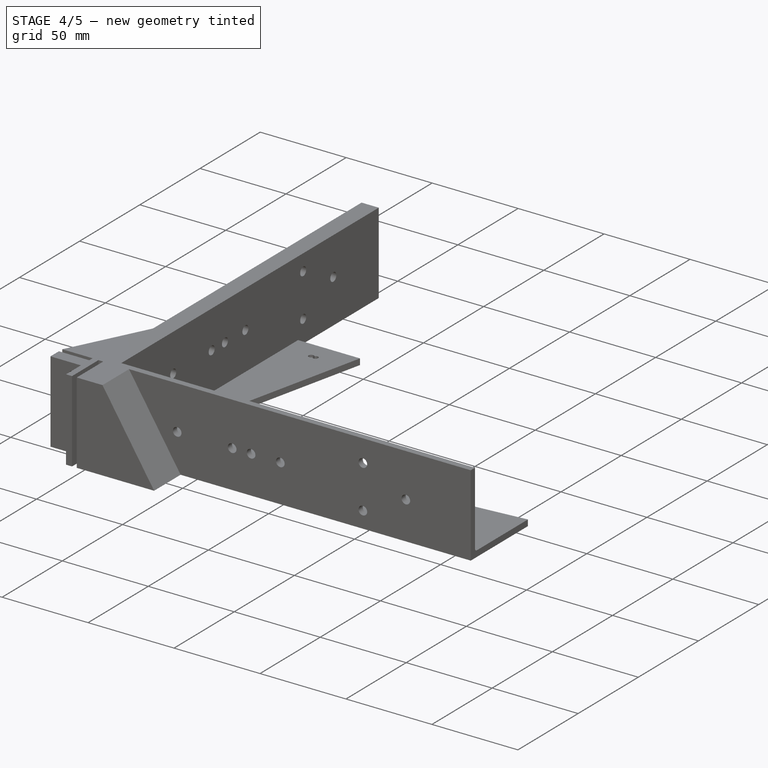
[diagram: stage 4 of 5 — iso view after this stage's code; geometry added in this stage tinted green]
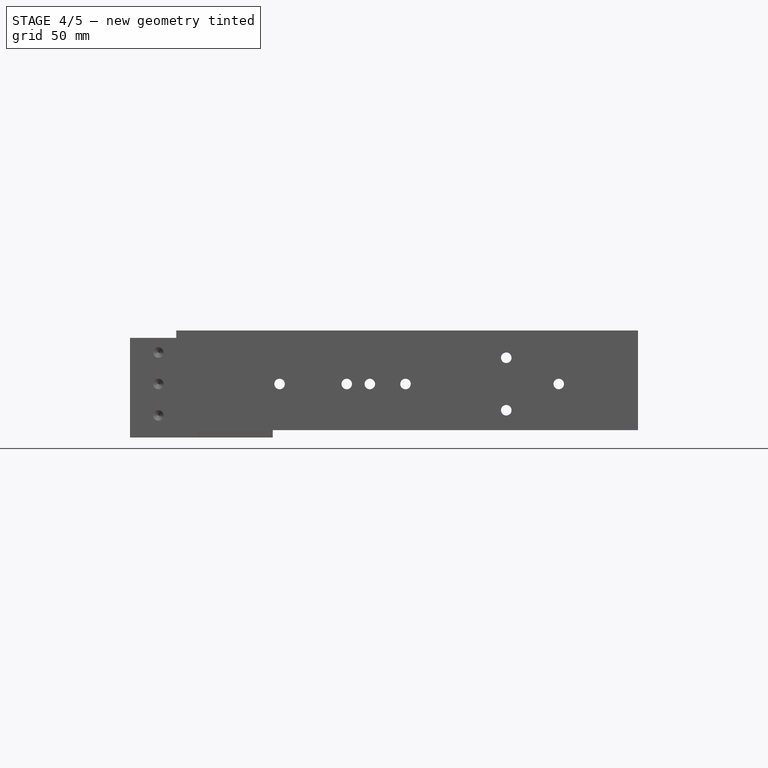
[diagram: stage 4 of 5 — front view after this stage's code; geometry added in this stage tinted green]
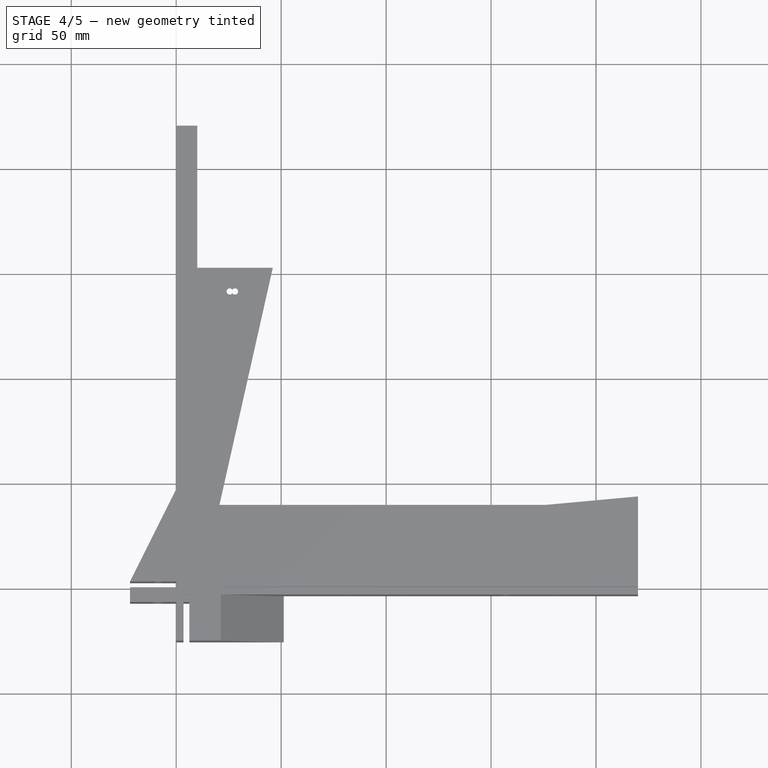
[diagram: stage 4 of 5 — top view after this stage's code; geometry added in this stage tinted green]
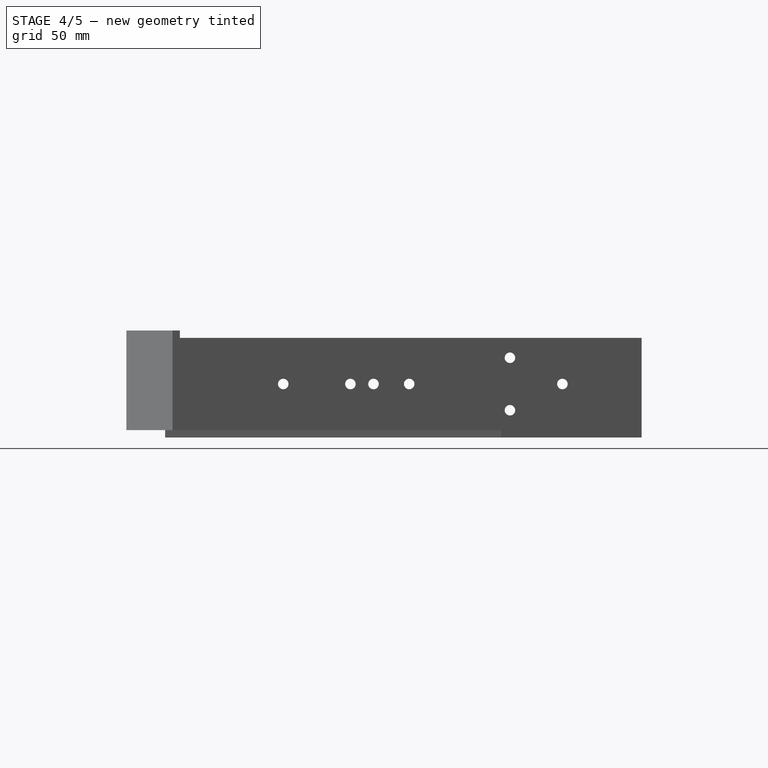
[diagram: stage 4 of 5 — right view after this stage's code; geometry added in this stage tinted green]
FEATURE [Sketcher::SketchObject] Sketch
  ArcFitTolerance = 1e-06
  AttachmentSupport = -> [XY_Plane]
  ExternalBSplineMaxDegree = 5
  ExternalBSplineTolerance = 0.0001
  FullyConstrained = true
  InternalTolerance = 1e-06
  InvalidShape = false
  MakeInternals = false
  MapMode = 5
  Support = -> [XY_Plane]
  TreeRank = 12
  ValidateShape = true
  sketch-geometry (4):
    g0: LineSegment StartX=0 StartY=0 StartZ=0 EndX=220 EndY=0 EndZ=0
    g1: LineSegment StartX=220 StartY=0 StartZ=0 EndX=220 EndY=40 EndZ=0
    g2: LineSegment StartX=220 StartY=40 StartZ=0 EndX=0 EndY=40 EndZ=0
    g3: LineSegment StartX=0 StartY=40 StartZ=0 EndX=0 EndY=0 EndZ=0
  constraints (11):
    c: Coincident(g0,g1)
    c: Coincident(g1,g2)
    c: Coincident(g2,g3)
    c: Coincident(g3,g0)
    c: Horizontal(g0)
    c: Horizontal(g2)
    c: Vertical(g1)
    c: Vertical(g3)
    c: Coincident(g0,g-1)
    c: DistanceY(g0,g2) = 40
    c: DistanceX(g0,g0) = 220
FEATURE [PartDesign::Pad] Pad  label="Long Part"
  AddSubType = 0
  AlongSketchNormal = false
  AutoTaperInnerAngle = true
  CheckUpToFaceLimits = true
  ClaimChildren = false
  Direction = (0,0,1)
  Fit = 0
  FitJoin = 0
  InnerFit = 0
  InnerFitJoin = 0
  InvalidShape = false
  Length = 3.5
  Length2 = 100
  Linearize = true
  NewSolid = false
  Profile = -> Sketch
  Suppress = false
  TaperInnerAngle = 0
  TaperInnerAngleRev = 0
  TreeRank = 13
  Type = 0
  ValidateShape = true
  _ProfileBasedVersion = 1
FEATURE [PartDesign::Hole] Hole001
  AddSubType = 1
  BaseFeature = -> Hole
  ClaimChildren = false
  CustomThreadClearance = 0
  Depth = 3.5
  DepthType = 0
  Diameter = 6.2
  DrillForDepth = false
  DrillPoint = 0
  DrillPointAngle = 118
  Fit = 0
  FitJoin = 0
  HoleCutCountersinkAngle = 90
  HoleCutCustomValues = false
  HoleCutDepth = 0
  HoleCutDiameter = 8.1
  HoleCutType = 0
  InnerFit = 0
  InnerFitJoin = 0
  InvalidShape = true
  Linearize = true
  ModelThread = false
  NewSolid = false
  Profile = -> Sketch010
  Suppress = false
  Tapered = false
  TaperedAngle = 90
  ThreadClass = 0
  ThreadDepth = 3.5
  ThreadDepthType = 0
  ThreadDirection = 0
  ThreadFit = 0
  ThreadSize = 0
  ThreadType = 0
  Threaded = false
  TreeRank = 53
  UseCustomThreadClearance = false
  ValidateShape = true
  _ProfileBasedVersion = 1
  expr: Depth = Spreadsheet.Min_Thickness
FEATURE [PartDesign::Fillet] Fillet
  AddSubType = 0
  Base = -> Hole001 [Edge17]
  BaseFeature = -> Hole001
  InvalidShape = false
  NewSolid = false
  Radius = 1.5
  SupportTransform = false
  Suppress = false
  TreeRank = 54
  ValidateShape = true
FEATURE [PartDesign::Chamfer] Chamfer001
  AddSubType = 0
  Angle = 45
  Base = -> Fillet [?Edge60,?Edge61]
  BaseFeature = -> Fillet
  ChamferType = 0
  FlipDirection = false
  InvalidShape = false
  NewSolid = false
  Size = 1
  Size2 = 1
  SupportTransform = false
  Suppress = false
  TreeRank = 55
  ValidateShape = true
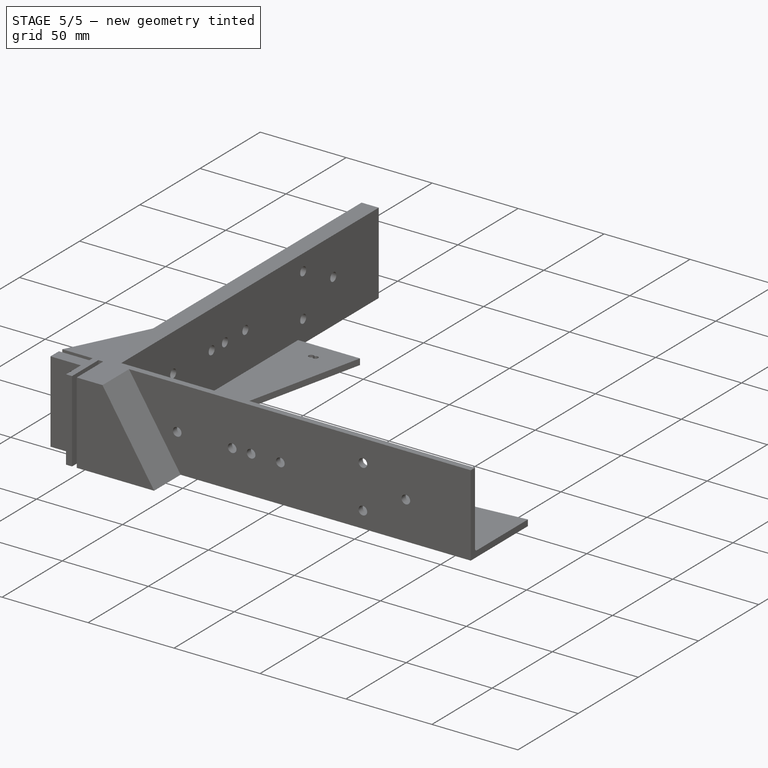
[diagram: stage 5 of 5 — iso view after this stage's code; geometry added in this stage tinted green]
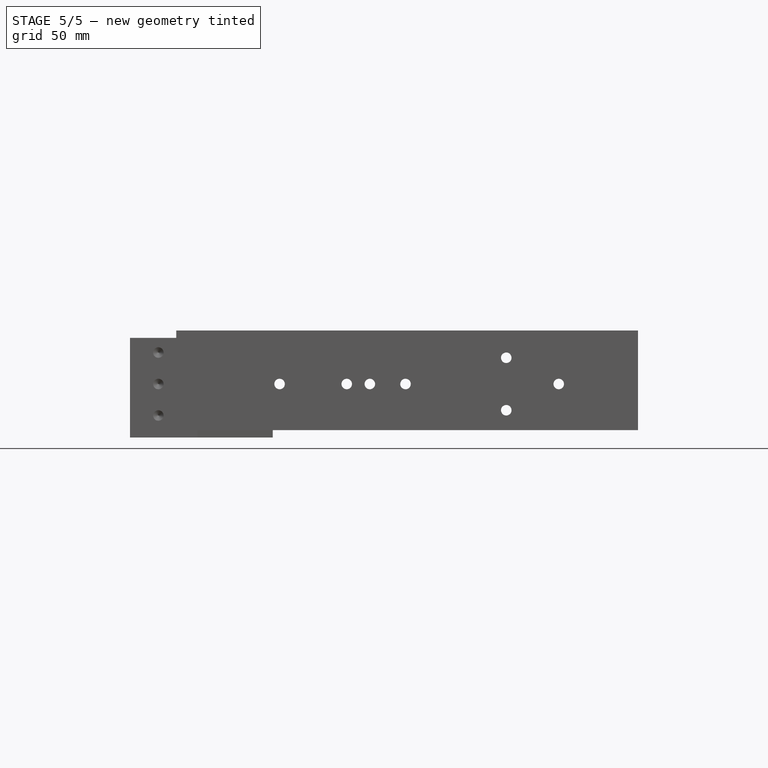
[diagram: stage 5 of 5 — front view after this stage's code; geometry added in this stage tinted green]
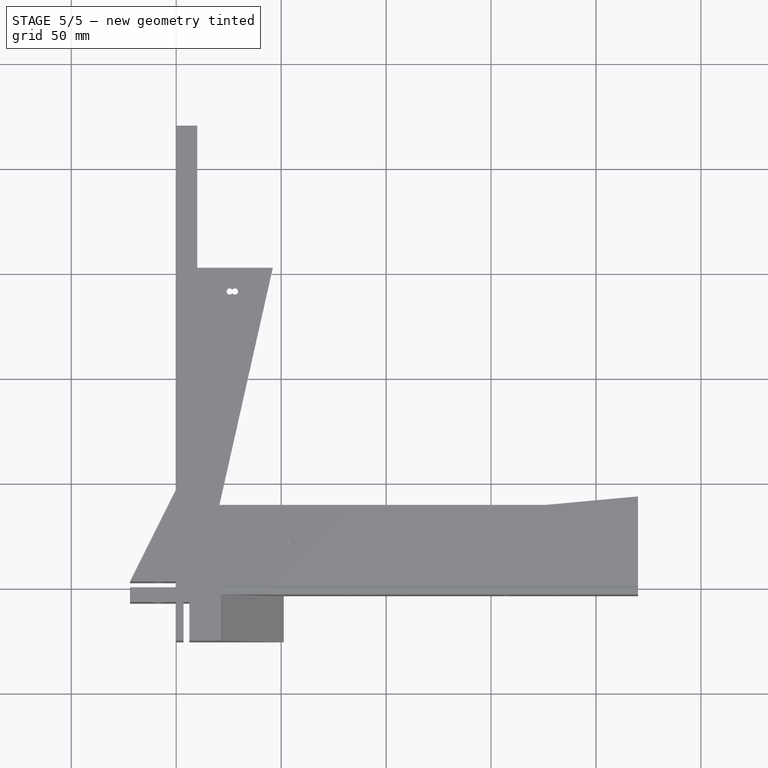
[diagram: stage 5 of 5 — top view after this stage's code; geometry added in this stage tinted green]
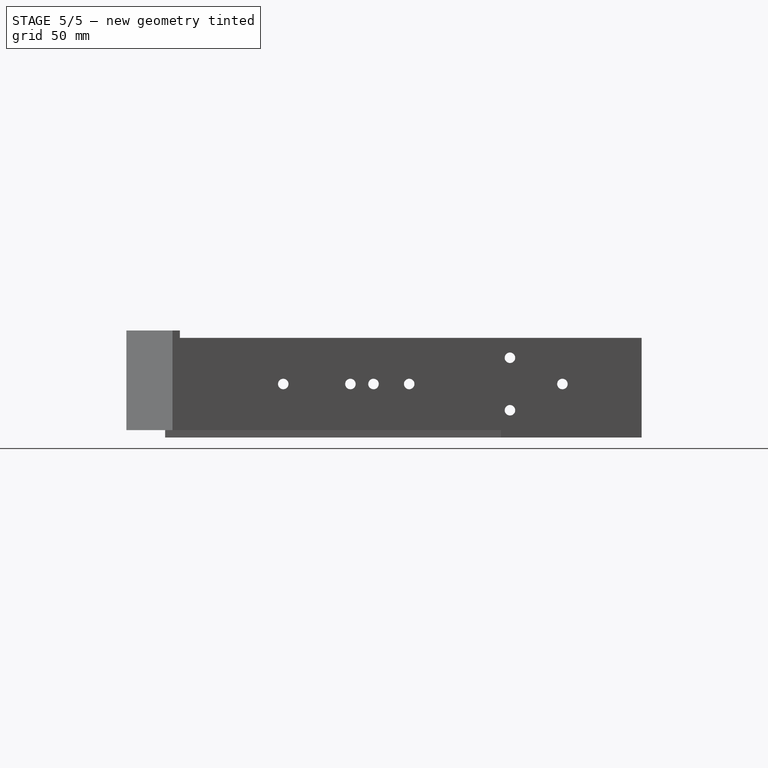
[diagram: stage 5 of 5 — right view after this stage's code; geometry added in this stage tinted green]
FEATURE [Sketcher::SketchObject] Sketch001
  ArcFitTolerance = 1e-06
  AttachmentSupport = -> [Pad]
  ExternalBSplineMaxDegree = 5
  ExternalBSplineTolerance = 0.0001
  FullyConstrained = true
  InternalTolerance = 1e-06
  InvalidShape = false
  MakeInternals = false
  MapMode = 5
  Placement = pos=(0,0,3.5) rot=(0,0,1;0rad)
  Support = -> [Pad]
  TreeRank = 14
  ValidateShape = true
  sketch-geometry (7):
    g0: Circle CenterX=55 CenterY=20 CenterZ=0 NormalX=0 NormalY=0 NormalZ=1 AngleXU=0 Radius=2.5
    g1: Circle CenterX=87 CenterY=20 CenterZ=0 NormalX=0 NormalY=0 NormalZ=1 AngleXU=0 Radius=2.5
    g2: Circle CenterX=98 CenterY=20 CenterZ=0 NormalX=0 NormalY=0 NormalZ=1 AngleXU=0 Radius=2.5
    g3: Circle CenterX=115 CenterY=20 CenterZ=0 NormalX=0 NormalY=0 NormalZ=1 AngleXU=0 Radius=2.5
    g4: Circle CenterX=188 CenterY=20 CenterZ=0 NormalX=0 NormalY=0 NormalZ=1 AngleXU=0 Radius=2.5
    g5: Circle CenterX=163 CenterY=32.5 CenterZ=0 NormalX=0 NormalY=0 NormalZ=1 AngleXU=0 Radius=2.5
    g6: Circle CenterX=163 CenterY=7.5 CenterZ=0 NormalX=0 NormalY=0 NormalZ=1 AngleXU=0 Radius=2.5
  constraints (21):
    c: Diameter(g0) = 5
    c: DistanceX(g-1,g0) = 55
    c: DistanceY(g-1,g0) = 20
    c: Equal(g0,g1)
    c: Equal(g0,g2)
    c: Equal(g0,g3)
    c: Equal(g0,g5)
    c: Equal(g0,g6)
    c: Equal(g0,g4)
    c: DistanceY(g-1,g1) = 20
    c: DistanceY(g-1,g2) = 20
    c: DistanceY(g-1,g3) = 20
    c: DistanceY(g-1,g4) = 20
    c: DistanceY(g-1,g6) = 7.5
    c: DistanceY(g-1,g5) = 32.5
    c: DistanceX(g0,g1) = 32
    c: DistanceX(g1,g2) = 11
    c: DistanceX(g2,g3) = 17
    c: DistanceX(g3,g4) = 73
    c: DistanceX(g3,g5) = 48
    c: DistanceX(g3,g6) = 48
FEATURE [PartDesign::Pocket] Pocket  label="Screw Holes"
  AddSubType = 1
  AutoTaperInnerAngle = true
  BaseFeature = -> Pad
  CheckUpToFaceLimits = true
  ClaimChildren = false
  Fit = 0
  FitJoin = 0
  InnerFit = 0
  InnerFitJoin = 0
  InvalidShape = false
  Length = 5
  Length2 = 100
  Linearize = true
  NewSolid = false
  Profile = -> Sketch001
  Suppress = false
  TaperInnerAngle = 0
  TaperInnerAngleRev = 0
  TreeRank = 15
  Type = 1
  ValidateShape = true
  _ProfileBasedVersion = 1
  _Version = 1
FEATURE [PartDesign::Chamfer] Chamfer  label="Screw Hole Chamfer"
  AddSubType = 0
  Angle = 45
  Base = -> Pocket [Edge21,Edge22,Edge23,Edge24,Edge26,Edge20,Edge25]
  BaseFeature = -> Pocket
  ChamferType = 0
  FlipDirection = false
  InvalidShape = false
  NewSolid = false
  Size = 1
  Size2 = 1
  SupportTransform = false
  Suppress = false
  TreeRank = 16
  ValidateShape = true
FEATURE [Sketcher::SketchObject] Sketch002
  ArcFitTolerance = 1e-06
  AttachmentSupport = -> [Chamfer]
  ExternalBSplineMaxDegree = 5
  ExternalBSplineTolerance = 0.0001
  FullyConstrained = true
  InternalTolerance = 1e-06
  InvalidShape = false
  MakeInternals = false
  MapMode = 5
  Placement = pos=(0,0,3.5) rot=(0,0,1;0rad)
  Support = -> [Chamfer]
  TreeRank = 17
  ValidateShape = true
  sketch-geometry (4):
    g0: LineSegment StartX=0 StartY=0 StartZ=0 EndX=3.5 EndY=0 EndZ=0
    g1: LineSegment StartX=3.5 StartY=0 StartZ=0 EndX=3.5 EndY=40 EndZ=0
    g2: LineSegment StartX=3.5 StartY=40 StartZ=0 EndX=0 EndY=40 EndZ=0
    g3: LineSegment StartX=0 StartY=40 StartZ=0 EndX=0 EndY=0 EndZ=0
  constraints (11):
    c: Coincident(g0,g1)
    c: Coincident(g1,g2)
    c: Coincident(g2,g3)
    c: Coincident(g3,g0)
    c: Horizontal(g0)
    c: Horizontal(g2)
    c: Vertical(g1)
    c: Vertical(g3)
    c: Coincident(g0,g-1)
    c: DistanceX(g0,g0) = 3.5
    c: DistanceY(g0,g2) = 40
FEATURE [PartDesign::Pad] Pad001  label="Short Part"
  AddSubType = 0
  AlongSketchNormal = false
  AutoTaperInnerAngle = true
  BaseFeature = -> Chamfer
  CheckUpToFaceLimits = true
  ClaimChildren = false
  Direction = (0,0,1)
  Fit = 0
  FitJoin = 0
  InnerFit = 0
  InnerFitJoin = 0
  InvalidShape = false
  Length = 18.5
  Length2 = 100
  Linearize = true
  NewSolid = false
  Profile = -> Sketch002
  Suppress = false
  TaperInnerAngle = 0
  TaperInnerAngleRev = 0
  TreeRank = 18
  Type = 0
  ValidateShape = true
  _ProfileBasedVersion = 1
FEATURE [Sketcher::SketchObject] Sketch003
  ArcFitTolerance = 1e-06
  ExternalBSplineMaxDegree = 5
  ExternalBSplineTolerance = 0.0001
  FullyConstrained = true
  InternalTolerance = 1e-06
  InvalidShape = false
  MakeInternals = false
  MapMode = 5
  Placement = pos=(0,0,0) rot=(0.57735,-0.57735,-0.57735;2.0944rad)
  TreeRank = 20
  ValidateShape = true
  sketch-geometry (2):
    g0: Circle CenterX=-32.5 CenterY=11 CenterZ=0 NormalX=0 NormalY=0 NormalZ=1 AngleXU=0 Radius=2.75
    g1: Circle CenterX=-7.5 CenterY=11 CenterZ=0 NormalX=0 NormalY=0 NormalZ=1 AngleXU=0 Radius=2.75
  constraints (6):
    c: Diameter(g0) = 5.5
    c: Equal(g0,g1)
    c: DistanceY(g-1,g1) = 11
    c: DistanceY(g-1,g0) = 11
    c: DistanceX(g1,g-1) = 7.5
    c: DistanceX(g0,g-1) = 32.5
FEATURE [PartDesign::Pocket] Pocket001  label="Mounting Holes"
  AddSubType = 1
  AutoTaperInnerAngle = true
  BaseFeature = -> Pad001
  CheckUpToFaceLimits = true
  ClaimChildren = false
  Fit = 0
  FitJoin = 0
  InnerFit = 0
  InnerFitJoin = 0
  InvalidShape = false
  Length = 5
  Length2 = 100
  Linearize = true
  NewSolid = false
  Profile = -> Sketch003
  Suppress = false
  TaperInnerAngle = 0
  TaperInnerAngleRev = 0
  TreeRank = 21
  Type = 1
  ValidateShape = true
  _ProfileBasedVersion = 1
  _Version = 1
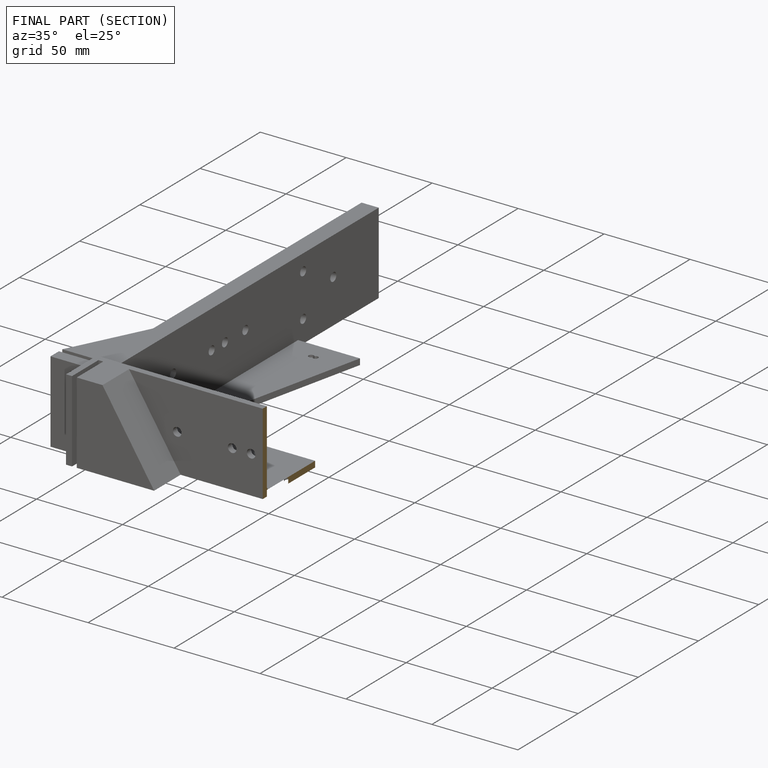
[diagram: finished part — half-section view (interior)]
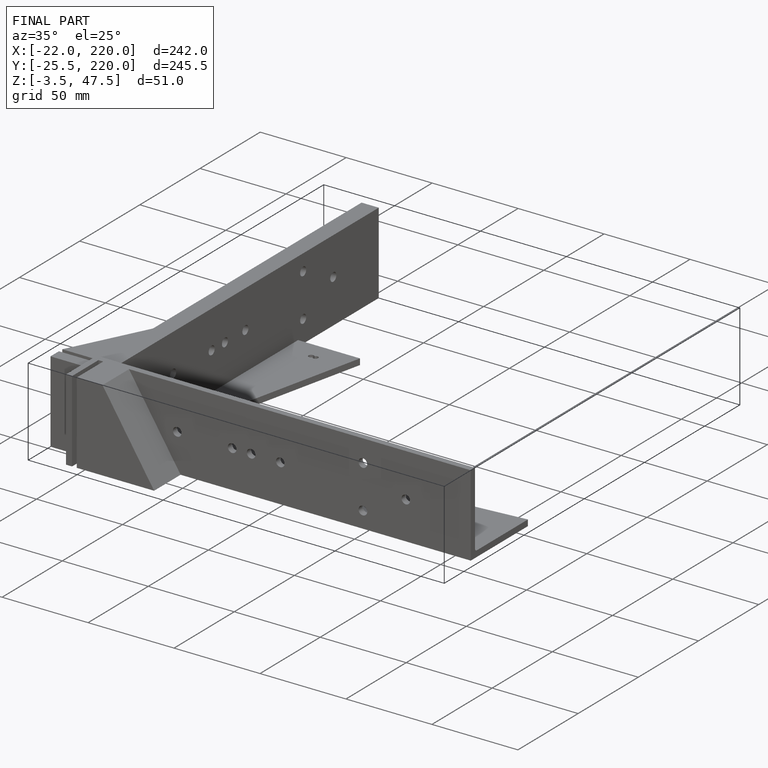
[diagram: finished part — iso view with bounding-box wireframe]
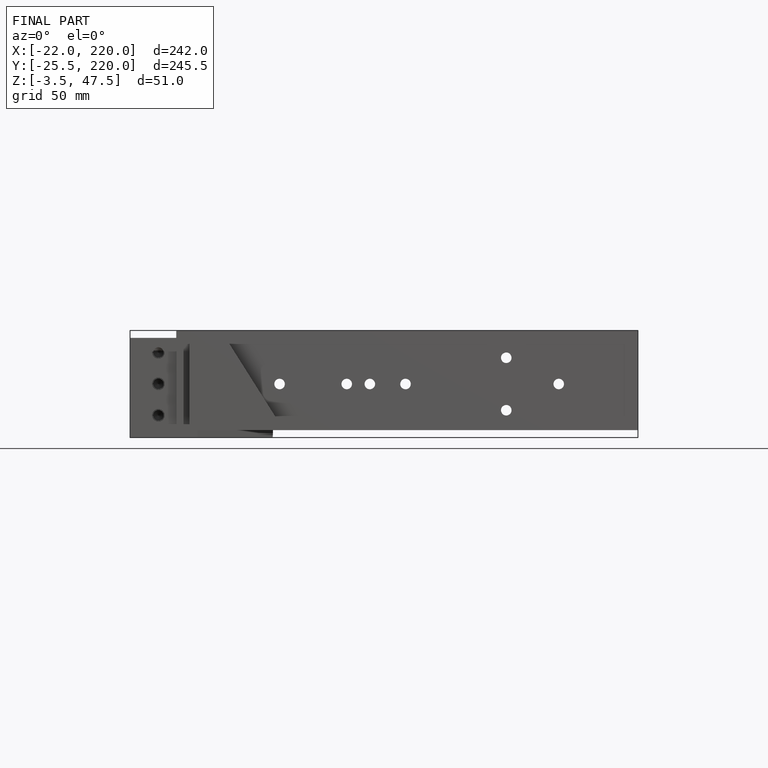
[diagram: finished part — front view with bounding-box wireframe]
